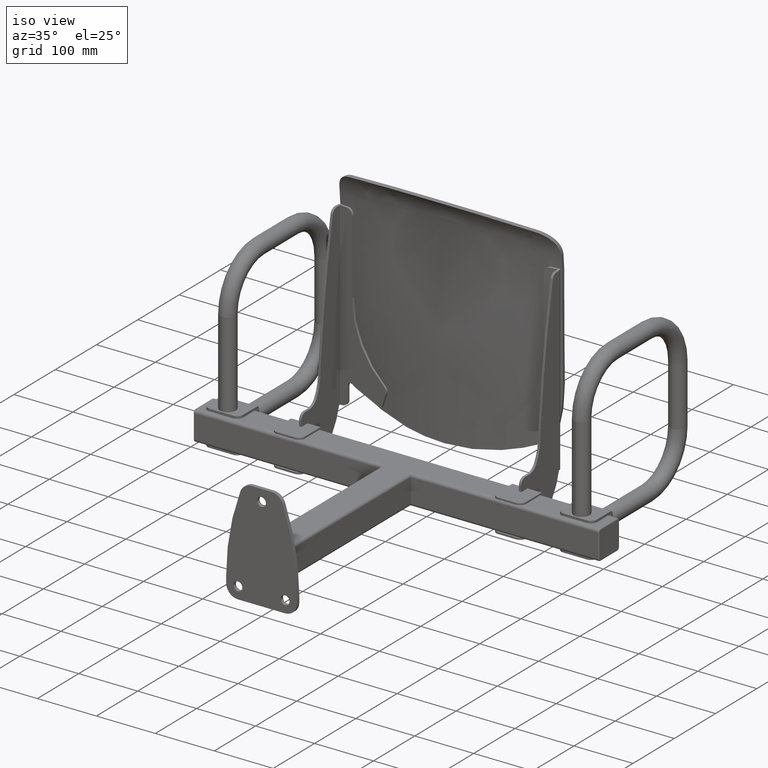
[diagram: clean part render]
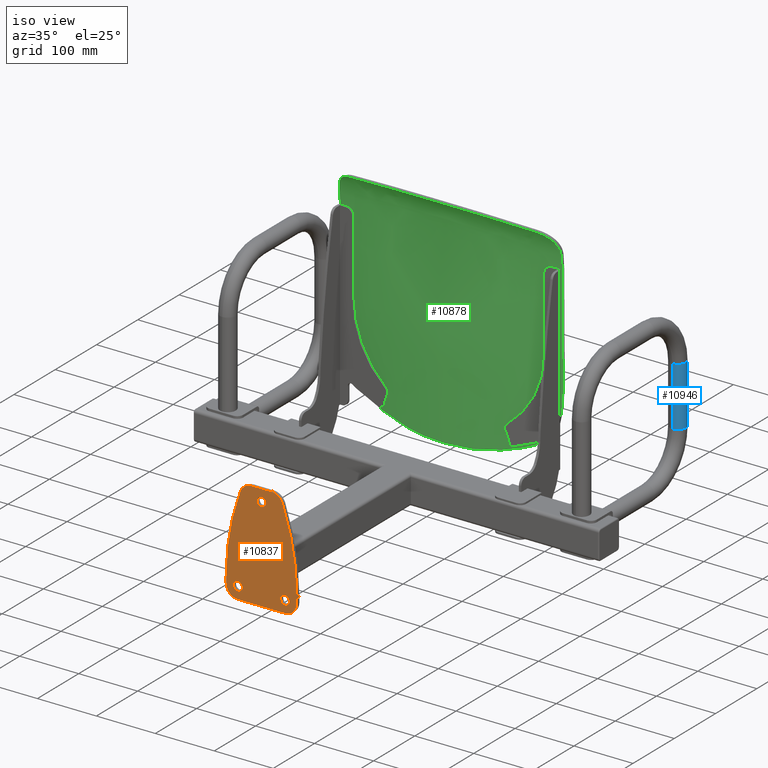
[diagram: same view with three faces highlighted in distinct colors, each labeled with its STEP entity id]
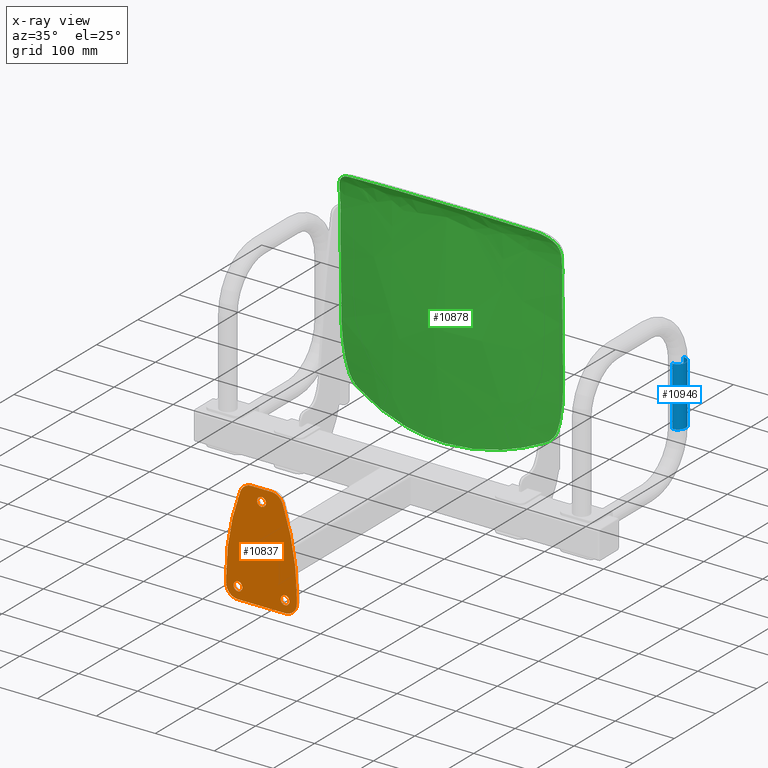
[diagram: x-ray of the same camera — body ghosted, the three highlighted faces saturated]
A machine part, iso view with three faces highlighted in distinct colors.
The next image is the same camera in x-ray (body ghosted, the three faces saturated) — at least one of them is partly hidden behind the body in this view.
Their STEP definitions:

[orange] entity #10837 — the highlighted planar face has unit normal (0, -1, 0).
#960 = LINE ( 'NONE', #13540, #973 ) ;
#973 = VECTOR ( 'NONE', #13545, 1000.000000000000000 ) ;
#1017 = CIRCLE ( 'NONE', #4292, 20.00000000000000400 ) ;
#1020 = CIRCLE ( 'NONE', #4291, 20.00000000000000400 ) ;
#1023 = CIRCLE ( 'NONE', #4293, 400.0000000000000000 ) ;
#1024 = CIRCLE ( 'NONE', #4294, 20.00000000000000400 ) ;
#1025 = CIRCLE ( 'NONE', #4295, 20.00000000000000400 ) ;
#1136 = CIRCLE ( 'NONE', #12463, 7.500000000000000000 ) ;
#1141 = CIRCLE ( 'NONE', #12468, 7.500000000000000000 ) ;
#1142 = CIRCLE ( 'NONE', #12465, 7.500000000000007100 ) ;
#1168 = LINE ( 'NONE', #10729, #1180 ) ;
#1172 = CIRCLE ( 'NONE', #12474, 400.0000000000000000 ) ;
#1173 = CIRCLE ( 'NONE', #12475, 7.500000000000000000 ) ;
#1174 = CIRCLE ( 'NONE', #12476, 7.500000000000000000 ) ;
#1175 = CIRCLE ( 'NONE', #12477, 7.500000000000007100 ) ;
#1177 = LINE ( 'NONE', #10728, #1188 ) ;
#1180 = VECTOR ( 'NONE', #10734, 1000.000000000000000 ) ;
#1188 = VECTOR ( 'NONE', #10742, 1000.000000000000000 ) ;
#1191 = LINE ( 'NONE', #10747, #1194 ) ;
#1194 = VECTOR ( 'NONE', #10748, 1000.000000000000000 ) ;
#1207 = EDGE_LOOP ( 'NONE', ( #12526, #12525, #12524, #12523, #12522, #11550, #11549, #11548, #11547, #11546 ) ) ;
#1649 = CARTESIAN_POINT ( 'NONE',  ( -60.00000000000000000, 0.0000000000000000000, 120.0000000000000100 ) ) ;
#1652 = DIRECTION ( 'NONE',  ( 0.0000000000000000000, -1.000000000000000000, 0.0000000000000000000 ) ) ;
#1657 = PLANE ( 'NONE',  #12519 ) ;
#1664 = DIRECTION ( 'NONE',  ( 0.0000000000000000000, -0.0000000000000000000, -1.000000000000000000 ) ) ;
#4291 = AXIS2_PLACEMENT_3D ( 'NONE', #5890, #5891, #5892 ) ;
#4292 = AXIS2_PLACEMENT_3D ( 'NONE', #5893, #5894, #5895 ) ;
#4293 = AXIS2_PLACEMENT_3D ( 'NONE', #5896, #5897, #5898 ) ;
#4294 = AXIS2_PLACEMENT_3D ( 'NONE', #5901, #5902, #5903 ) ;
#4295 = AXIS2_PLACEMENT_3D ( 'NONE', #5904, #5905, #5906 ) ;
#4539 = EDGE_LOOP ( 'NONE', ( #12530, #12529 ) ) ;
#4542 = EDGE_LOOP ( 'NONE', ( #12528, #12527 ) ) ;
#4543 = EDGE_LOOP ( 'NONE', ( #12532, #12531 ) ) ;
#4637 = CARTESIAN_POINT ( 'NONE',  ( 40.00000000000003600, 0.0000000000000000000, -32.49999999999997900 ) ) ;
#4671 = CARTESIAN_POINT ( 'NONE',  ( -17.07142142714251800, 0.0000000000000000000, 120.0000000000000100 ) ) ;
#4672 = CARTESIAN_POINT ( 'NONE',  ( 9.184850993605149900E-016, 0.0000000000000000000, 92.50000000000000000 ) ) ;
#4680 = CARTESIAN_POINT ( 'NONE',  ( 0.0000000000000000000, 0.0000000000000000000, 107.5000000000000100 ) ) ;
#4778 = CARTESIAN_POINT ( 'NONE',  ( -40.00000000000002800, 0.0000000000000000000, -47.49999999999996400 ) ) ;
#4786 = CARTESIAN_POINT ( 'NONE',  ( 40.00000000000003600, 0.0000000000000000000, -47.49999999999997900 ) ) ;
#4794 = CARTESIAN_POINT ( 'NONE',  ( -40.00000000000002800, 0.0000000000000000000, -32.49999999999996400 ) ) ;
#5526 = VERTEX_POINT ( 'NONE', #4778 ) ;
#5534 = VERTEX_POINT ( 'NONE', #4786 ) ;
#5544 = VERTEX_POINT ( 'NONE', #4794 ) ;
#5634 = VERTEX_POINT ( 'NONE', #13451 ) ;
#5635 = VERTEX_POINT ( 'NONE', #13446 ) ;
#5636 = VERTEX_POINT ( 'NONE', #13452 ) ;
#5642 = VERTEX_POINT ( 'NONE', #13458 ) ;
#5650 = VERTEX_POINT ( 'NONE', #13466 ) ;
#5652 = VERTEX_POINT ( 'NONE', #13468 ) ;
#5662 = VERTEX_POINT ( 'NONE', #13478 ) ;
#5711 = EDGE_CURVE ( 'NONE', #5642, #5635, #960, .T. ) ;
#5744 = EDGE_CURVE ( 'NONE', #16011, #5652, #1020, .T. ) ;
#5745 = EDGE_CURVE ( 'NONE', #5642, #5662, #1017, .T. ) ;
#5746 = EDGE_CURVE ( 'NONE', #5635, #5636, #1023, .T. ) ;
#5747 = EDGE_CURVE ( 'NONE', #10564, #5636, #1024, .T. ) ;
#5748 = EDGE_CURVE ( 'NONE', #16008, #5634, #1025, .T. ) ;
#5890 = CARTESIAN_POINT ( 'NONE',  ( 40.00000000000003600, 0.0000000000000000000, -39.99999999999997900 ) ) ;
#5891 = DIRECTION ( 'NONE',  ( -0.0000000000000000000, -1.000000000000000000, 0.0000000000000000000 ) ) ;
#5892 = DIRECTION ( 'NONE',  ( 0.0000000000000000000, 0.0000000000000000000, -1.000000000000000000 ) ) ;
#5893 = CARTESIAN_POINT ( 'NONE',  ( -40.00000000000002800, 0.0000000000000000000, -39.99999999999996400 ) ) ;
#5894 = DIRECTION ( 'NONE',  ( -0.0000000000000000000, -1.000000000000000000, 0.0000000000000000000 ) ) ;
#5895 = DIRECTION ( 'NONE',  ( 0.0000000000000000000, 0.0000000000000000000, -1.000000000000000000 ) ) ;
#5896 = CARTESIAN_POINT ( 'NONE',  ( 339.9999999999999400, 0.0000000000000000000, -29.99999999999998600 ) ) ;
#5897 = DIRECTION ( 'NONE',  ( 0.0000000000000000000, 1.000000000000000000, -0.0000000000000000000 ) ) ;
#5898 = DIRECTION ( 'NONE',  ( 0.0000000000000000000, 0.0000000000000000000, -1.000000000000000000 ) ) ;
#5901 = CARTESIAN_POINT ( 'NONE',  ( -17.07142142714251800, 0.0000000000000000000, 100.0000000000000100 ) ) ;
#5902 = DIRECTION ( 'NONE',  ( -0.0000000000000000000, -1.000000000000000000, 0.0000000000000000000 ) ) ;
#5903 = DIRECTION ( 'NONE',  ( 0.0000000000000000000, 0.0000000000000000000, -1.000000000000000000 ) ) ;
#5904 = CARTESIAN_POINT ( 'NONE',  ( 17.07142142714251800, 0.0000000000000000000, 100.0000000000000100 ) ) ;
#5905 = DIRECTION ( 'NONE',  ( -0.0000000000000000000, -1.000000000000000000, 0.0000000000000000000 ) ) ;
#5906 = DIRECTION ( 'NONE',  ( 0.0000000000000000000, 0.0000000000000000000, -1.000000000000000000 ) ) ;
#5938 = EDGE_CURVE ( 'NONE', #9843, #5534, #1136, .T. ) ;
#5942 = EDGE_CURVE ( 'NONE', #10573, #10565, #1142, .T. ) ;
#5949 = EDGE_CURVE ( 'NONE', #5544, #5526, #1141, .T. ) ;
#5961 = EDGE_CURVE ( 'NONE', #16008, #5650, #1172, .T. ) ;
#5962 = EDGE_CURVE ( 'NONE', #5526, #5544, #1173, .T. ) ;
#5963 = EDGE_CURVE ( 'NONE', #5534, #9843, #1174, .T. ) ;
#5964 = EDGE_CURVE ( 'NONE', #10565, #10573, #1175, .T. ) ;
#5966 = EDGE_CURVE ( 'NONE', #16011, #5662, #1168, .T. ) ;
#5970 = EDGE_CURVE ( 'NONE', #5650, #5652, #1177, .T. ) ;
#5973 = EDGE_CURVE ( 'NONE', #10564, #5634, #1191, .T. ) ;
#9843 = VERTEX_POINT ( 'NONE', #4637 ) ;
#9913 = FACE_BOUND ( 'NONE', #4542, .T. ) ;
#9916 = FACE_BOUND ( 'NONE', #4543, .T. ) ;
#9917 = FACE_OUTER_BOUND ( 'NONE', #1207, .T. ) ;
#9918 = FACE_BOUND ( 'NONE', #4539, .T. ) ;
#10564 = VERTEX_POINT ( 'NONE', #4671 ) ;
#10565 = VERTEX_POINT ( 'NONE', #4672 ) ;
#10573 = VERTEX_POINT ( 'NONE', #4680 ) ;
#10674 = CARTESIAN_POINT ( 'NONE',  ( 0.0000000000000000000, 0.0000000000000000000, 100.0000000000000000 ) ) ;
#10675 = DIRECTION ( 'NONE',  ( -0.0000000000000000000, -1.000000000000000000, 0.0000000000000000000 ) ) ;
#10676 = DIRECTION ( 'NONE',  ( 0.0000000000000000000, 0.0000000000000000000, -1.000000000000000000 ) ) ;
#10687 = CARTESIAN_POINT ( 'NONE',  ( -40.00000000000002800, 0.0000000000000000000, -39.99999999999996400 ) ) ;
#10688 = DIRECTION ( 'NONE',  ( -0.0000000000000000000, -1.000000000000000000, 0.0000000000000000000 ) ) ;
#10689 = DIRECTION ( 'NONE',  ( 0.0000000000000000000, 0.0000000000000000000, -1.000000000000000000 ) ) ;
#10717 = CARTESIAN_POINT ( 'NONE',  ( -339.9999999999999400, 0.0000000000000000000, -29.99999999999998600 ) ) ;
#10718 = DIRECTION ( 'NONE',  ( 0.0000000000000000000, 1.000000000000000000, -0.0000000000000000000 ) ) ;
#10719 = DIRECTION ( 'NONE',  ( 2.636779683484746800E-015, 0.0000000000000000000, -1.000000000000000000 ) ) ;
#10720 = CARTESIAN_POINT ( 'NONE',  ( -40.00000000000002800, 0.0000000000000000000, -39.99999999999996400 ) ) ;
#10721 = DIRECTION ( 'NONE',  ( -0.0000000000000000000, -1.000000000000000000, 0.0000000000000000000 ) ) ;
#10722 = DIRECTION ( 'NONE',  ( 0.0000000000000000000, 0.0000000000000000000, -1.000000000000000000 ) ) ;
#10725 = CARTESIAN_POINT ( 'NONE',  ( 40.00000000000003600, 0.0000000000000000000, -39.99999999999997900 ) ) ;
#10726 = DIRECTION ( 'NONE',  ( -0.0000000000000000000, -1.000000000000000000, 0.0000000000000000000 ) ) ;
#10727 = DIRECTION ( 'NONE',  ( 0.0000000000000000000, 0.0000000000000000000, -1.000000000000000000 ) ) ;
#10728 = CARTESIAN_POINT ( 'NONE',  ( 60.00000000000000000, 0.0000000000000000000, 120.0000000000000100 ) ) ;
#10729 = CARTESIAN_POINT ( 'NONE',  ( 60.00000000000004300, 0.0000000000000000000, -59.99999999999998600 ) ) ;
#10730 = CARTESIAN_POINT ( 'NONE',  ( 0.0000000000000000000, 0.0000000000000000000, 100.0000000000000000 ) ) ;
#10731 = DIRECTION ( 'NONE',  ( -0.0000000000000000000, -1.000000000000000000, 0.0000000000000000000 ) ) ;
#10732 = DIRECTION ( 'NONE',  ( 0.0000000000000000000, 0.0000000000000000000, -1.000000000000000000 ) ) ;
#10734 = DIRECTION ( 'NONE',  ( -1.000000000000000000, 0.0000000000000000000, 0.0000000000000000000 ) ) ;
#10742 = DIRECTION ( 'NONE',  ( 2.312964634635743000E-016, 0.0000000000000000000, -1.000000000000000000 ) ) ;
#10747 = CARTESIAN_POINT ( 'NONE',  ( 60.00000000000000000, 0.0000000000000000000, 120.0000000000000100 ) ) ;
#10748 = DIRECTION ( 'NONE',  ( 1.000000000000000000, -0.0000000000000000000, -0.0000000000000000000 ) ) ;
#10837 = ADVANCED_FACE ( 'NONE', ( #9916, #9918, #9913, #9917 ), #1657, .T. ) ;
#11546 = ORIENTED_EDGE ( 'NONE', *, *, #5970, .F. ) ;
#11547 = ORIENTED_EDGE ( 'NONE', *, *, #5744, .T. ) ;
#11548 = ORIENTED_EDGE ( 'NONE', *, *, #5966, .F. ) ;
#11549 = ORIENTED_EDGE ( 'NONE', *, *, #5745, .T. ) ;
#11550 = ORIENTED_EDGE ( 'NONE', *, *, #5711, .F. ) ;
#11796 = CARTESIAN_POINT ( 'NONE',  ( 40.00000000000003600, 0.0000000000000000000, -39.99999999999997900 ) ) ;
#11797 = DIRECTION ( 'NONE',  ( -0.0000000000000000000, -1.000000000000000000, 0.0000000000000000000 ) ) ;
#11798 = DIRECTION ( 'NONE',  ( 0.0000000000000000000, 0.0000000000000000000, -1.000000000000000000 ) ) ;
#12463 = AXIS2_PLACEMENT_3D ( 'NONE', #11796, #11797, #11798 ) ;
#12465 = AXIS2_PLACEMENT_3D ( 'NONE', #10674, #10675, #10676 ) ;
#12468 = AXIS2_PLACEMENT_3D ( 'NONE', #10687, #10688, #10689 ) ;
#12474 = AXIS2_PLACEMENT_3D ( 'NONE', #10717, #10718, #10719 ) ;
#12475 = AXIS2_PLACEMENT_3D ( 'NONE', #10720, #10721, #10722 ) ;
#12476 = AXIS2_PLACEMENT_3D ( 'NONE', #10725, #10726, #10727 ) ;
#12477 = AXIS2_PLACEMENT_3D ( 'NONE', #10730, #10731, #10732 ) ;
#12519 = AXIS2_PLACEMENT_3D ( 'NONE', #1649, #1652, #1664 ) ;
#12522 = ORIENTED_EDGE ( 'NONE', *, *, #5746, .F. ) ;
#12523 = ORIENTED_EDGE ( 'NONE', *, *, #5747, .T. ) ;
#12524 = ORIENTED_EDGE ( 'NONE', *, *, #5973, .F. ) ;
#12525 = ORIENTED_EDGE ( 'NONE', *, *, #5748, .T. ) ;
#12526 = ORIENTED_EDGE ( 'NONE', *, *, #5961, .F. ) ;
#12527 = ORIENTED_EDGE ( 'NONE', *, *, #5962, .F. ) ;
#12528 = ORIENTED_EDGE ( 'NONE', *, *, #5949, .F. ) ;
#12529 = ORIENTED_EDGE ( 'NONE', *, *, #5963, .F. ) ;
#12530 = ORIENTED_EDGE ( 'NONE', *, *, #5938, .F. ) ;
#12531 = ORIENTED_EDGE ( 'NONE', *, *, #5964, .F. ) ;
#12532 = ORIENTED_EDGE ( 'NONE', *, *, #5942, .F. ) ;
#13446 = CARTESIAN_POINT ( 'NONE',  ( -60.00000000000003600, 0.0000000000000000000, -29.99999999999992900 ) ) ;
#13451 = CARTESIAN_POINT ( 'NONE',  ( 17.07142142714251800, 0.0000000000000000000, 120.0000000000000100 ) ) ;
#13452 = CARTESIAN_POINT ( 'NONE',  ( -35.86465413383421500, 0.0000000000000000000, 106.8421052631579500 ) ) ;
#13458 = CARTESIAN_POINT ( 'NONE',  ( -60.00000000000003600, 0.0000000000000000000, -39.99999999999990800 ) ) ;
#13466 = CARTESIAN_POINT ( 'NONE',  ( 60.00000000000004300, 0.0000000000000000000, -29.99999999999998600 ) ) ;
#13468 = CARTESIAN_POINT ( 'NONE',  ( 60.00000000000003600, 0.0000000000000000000, -39.99999999999990800 ) ) ;
#13478 = CARTESIAN_POINT ( 'NONE',  ( -40.00000000000002100, 0.0000000000000000000, -59.99999999999998600 ) ) ;
#13540 = CARTESIAN_POINT ( 'NONE',  ( -60.00000000000000000, 0.0000000000000000000, 120.0000000000000100 ) ) ;
#13545 = DIRECTION ( 'NONE',  ( 2.312964634635743000E-016, -0.0000000000000000000, 1.000000000000000000 ) ) ;
#14632 = CARTESIAN_POINT ( 'NONE',  ( 35.86465413383421500, 0.0000000000000000000, 106.8421052631579500 ) ) ;
#14641 = CARTESIAN_POINT ( 'NONE',  ( 40.00000000000003600, 0.0000000000000000000, -59.99999999999998600 ) ) ;
#16008 = VERTEX_POINT ( 'NONE', #14632 ) ;
#16011 = VERTEX_POINT ( 'NONE', #14641 ) ;

[blue] entity #10946 — the highlighted cylindrical surface (edge-blend (fillet) strip) has radius 13.5 mm, axis along (0, -0, 1).
#699 = CIRCLE ( 'NONE', #4238, 13.50000000000001200 ) ;
#701 = CIRCLE ( 'NONE', #4240, 13.50000000000001200 ) ;
#722 = LINE ( 'NONE', #13403, #728 ) ;
#727 = LINE ( 'NONE', #13409, #730 ) ;
#728 = VECTOR ( 'NONE', #13408, 1000.000000000000000 ) ;
#730 = VECTOR ( 'NONE', #13410, 1000.000000000000000 ) ;
#1376 = CARTESIAN_POINT ( 'NONE',  ( 0.0000000000000000000, 204.0000000000000300, 75.00000000000052600 ) ) ;
#1377 = DIRECTION ( 'NONE',  ( 0.0000000000000000000, -1.370553316539457400E-014, 1.000000000000000000 ) ) ;
#1378 = DIRECTION ( 'NONE',  ( 0.0000000000000000000, -1.000000000000000000, -1.336379566678427900E-014 ) ) ;
#1382 = CARTESIAN_POINT ( 'NONE',  ( 0.0000000000000000000, 204.0000000000000000, 174.9999999999994900 ) ) ;
#1383 = DIRECTION ( 'NONE',  ( 0.0000000000000000000, -1.370553316539457400E-014, 1.000000000000000000 ) ) ;
#1384 = DIRECTION ( 'NONE',  ( 0.0000000000000000000, -1.000000000000000000, -1.439177994884460800E-014 ) ) ;
#1451 = ORIENTED_EDGE ( 'NONE', *, *, #4373, .F. ) ;
#1452 = ORIENTED_EDGE ( 'NONE', *, *, #4353, .F. ) ;
#1453 = ORIENTED_EDGE ( 'NONE', *, *, #4372, .T. ) ;
#1454 = ORIENTED_EDGE ( 'NONE', *, *, #4351, .T. ) ;
#2588 = DIRECTION ( 'NONE',  ( 0.0000000000000000000, -1.000000000000000000, 0.0000000000000000000 ) ) ;
#2589 = CARTESIAN_POINT ( 'NONE',  ( 0.0000000000000000000, 204.0000000000000300, 75.00000000000052600 ) ) ;
#2590 = DIRECTION ( 'NONE',  ( 0.0000000000000000000, -2.775557561562919900E-016, 1.000000000000000000 ) ) ;
#3958 = AXIS2_PLACEMENT_3D ( 'NONE', #2589, #2590, #2588 ) ;
#4238 = AXIS2_PLACEMENT_3D ( 'NONE', #1376, #1377, #1378 ) ;
#4240 = AXIS2_PLACEMENT_3D ( 'NONE', #1382, #1383, #1384 ) ;
#4351 = EDGE_CURVE ( 'NONE', #9729, #9501, #699, .T. ) ;
#4353 = EDGE_CURVE ( 'NONE', #9720, #9500, #701, .T. ) ;
#4372 = EDGE_CURVE ( 'NONE', #9501, #9500, #722, .T. ) ;
#4373 = EDGE_CURVE ( 'NONE', #9729, #9720, #727, .T. ) ;
#5539 = EDGE_LOOP ( 'NONE', ( #1454, #1453, #1452, #1451 ) ) ;
#9500 = VERTEX_POINT ( 'NONE', #9691 ) ;
#9501 = VERTEX_POINT ( 'NONE', #9692 ) ;
#9691 = CARTESIAN_POINT ( 'NONE',  ( 1.653273178848925300E-015, 217.5000000000000000, 174.9999999999996900 ) ) ;
#9692 = CARTESIAN_POINT ( 'NONE',  ( 1.653273178848925300E-015, 217.5000000000000300, 75.00000000000071100 ) ) ;
#9697 = CARTESIAN_POINT ( 'NONE',  ( 0.0000000000000000000, 190.4999999999999700, 174.9999999999992900 ) ) ;
#9706 = CARTESIAN_POINT ( 'NONE',  ( 0.0000000000000000000, 190.5000000000000000, 75.00000000000034100 ) ) ;
#9720 = VERTEX_POINT ( 'NONE', #9697 ) ;
#9729 = VERTEX_POINT ( 'NONE', #9706 ) ;
#10946 = ADVANCED_FACE ( 'NONE', ( #11109 ), #11114, .T. ) ;
#11109 = FACE_OUTER_BOUND ( 'NONE', #5539, .T. ) ;
#11114 = CYLINDRICAL_SURFACE ( 'NONE', #3958, 13.50000000000001200 ) ;
#13403 = CARTESIAN_POINT ( 'NONE',  ( 1.653273178848926900E-015, 217.5000000000000300, 75.00000000000052600 ) ) ;
#13408 = DIRECTION ( 'NONE',  ( 0.0000000000000000000, -2.775557561562919900E-016, 1.000000000000000000 ) ) ;
#13409 = CARTESIAN_POINT ( 'NONE',  ( 0.0000000000000000000, 190.5000000000000000, 75.00000000000052600 ) ) ;
#13410 = DIRECTION ( 'NONE',  ( 0.0000000000000000000, -2.775557561562919900E-016, 1.000000000000000000 ) ) ;

[green] entity #10878 — the highlighted face is a freeform B-spline surface patch.
#1897 = CARTESIAN_POINT ( 'NONE',  ( 94.00147219792437200, -6.652947047398322800, 24.07905034312255700 ) ) ;
#1899 = CARTESIAN_POINT ( 'NONE',  ( 94.03219518225523600, -19.44281577140797200, 9.394089762111953200 ) ) ;
#1901 = CARTESIAN_POINT ( 'NONE',  ( 94.05184892738940100, -27.62459972487273100, 0.0000000000000000000 ) ) ;
#1903 = CARTESIAN_POINT ( 'NONE',  ( 43.98675412974044000, -21.07821725085221600, 373.9999999999994300 ) ) ;
#1905 = CARTESIAN_POINT ( 'NONE',  ( 43.66749001821980200, -21.06909804852173100, 359.4733192631499600 ) ) ;
#1907 = CARTESIAN_POINT ( 'NONE',  ( 43.12537105877513000, -21.05361340023219400, 334.8066287048629900 ) ) ;
#1909 = CARTESIAN_POINT ( 'NONE',  ( 46.09469711595767200, -21.13842683250824800, 301.8064929026463100 ) ) ;
#1911 = CARTESIAN_POINT ( 'NONE',  ( 46.98815794703518400, -20.89704230365081700, 274.9985839518411700 ) ) ;
#1913 = CARTESIAN_POINT ( 'NONE',  ( 47.59151520274323800, -20.51884905074953400, 241.6650823493232000 ) ) ;
#1915 = CARTESIAN_POINT ( 'NONE',  ( 47.31135019484687400, -19.84431566015828400, 199.8982916209791100 ) ) ;
#1917 = CARTESIAN_POINT ( 'NONE',  ( 47.22864401855365200, -14.93325044084706700, 150.0974369892218500 ) ) ;
#1919 = CARTESIAN_POINT ( 'NONE',  ( 47.13401870486706700, -12.42010151494119600, 99.82918264297163100 ) ) ;
#1921 = CARTESIAN_POINT ( 'NONE',  ( 47.13352537934614600, -10.59020911032147800, 60.46496127421701800 ) ) ;
#1923 = CARTESIAN_POINT ( 'NONE',  ( 47.00093352157590900, -7.362369461196079700, 24.07905034312243900 ) ) ;
#1925 = CARTESIAN_POINT ( 'NONE',  ( 47.01982399342549000, -20.40587371042583300, 9.394089762111905300 ) ) ;
#1927 = CARTESIAN_POINT ( 'NONE',  ( 47.03190838324900400, -28.74991039025195100, 0.0000000000000000000 ) ) ;
#1929 = CARTESIAN_POINT ( 'NONE',  ( 14.66225220949522000, -22.00000000000002500, 373.9999999999999400 ) ) ;
#1931 = CARTESIAN_POINT ( 'NONE',  ( 14.55583085501892200, -21.99054997315610300, 359.4733192631504200 ) ) ;
#1933 = CARTESIAN_POINT ( 'NONE',  ( 14.37512456242438000, -21.97450357603696600, 334.8066287048631000 ) ) ;
#1935 = CARTESIAN_POINT ( 'NONE',  ( 15.36489976572564100, -22.06239385225708100, 301.8064929026463700 ) ) ;
#1937 = CARTESIAN_POINT ( 'NONE',  ( 15.66271997199650900, -21.81009793963124800, 274.9985839518418500 ) ) ;
#1939 = CARTESIAN_POINT ( 'NONE',  ( 15.86383899043085300, -21.41547858856280600, 241.6650823493227400 ) ) ;
#1941 = CARTESIAN_POINT ( 'NONE',  ( 15.77045055697225500, -20.70839552231908000, 199.8982916209793900 ) ) ;
#1943 = CARTESIAN_POINT ( 'NONE',  ( 15.74288147546312700, -15.59293277903757500, 150.0974369892213100 ) ) ;
#1945 = CARTESIAN_POINT ( 'NONE',  ( 15.71133964592019800, -12.92785167479971300, 99.82918264297161700 ) ) ;
#1947 = CARTESIAN_POINT ( 'NONE',  ( 15.71117517316967000, -11.14362298375914900, 60.46496127421701800 ) ) ;
#1949 = CARTESIAN_POINT ( 'NONE',  ( 15.66697783122310200, -7.519999861654865100, 24.07905034312249600 ) ) ;
#1951 = CARTESIAN_POINT ( 'NONE',  ( 15.67327466315477500, -20.61989171024679400, 9.394089762111930100 ) ) ;
#1953 = CARTESIAN_POINT ( 'NONE',  ( 15.67730279820198000, -29.00000000000036600, 0.0000000000000000000 ) ) ;
#1955 = CARTESIAN_POINT ( 'NONE',  ( -14.66225220949562000, -22.00000000000001400, 373.9999999999999400 ) ) ;
#1957 = CARTESIAN_POINT ( 'NONE',  ( -14.55583085501935700, -21.99054997315608900, 359.4733192631504200 ) ) ;
#1959 = CARTESIAN_POINT ( 'NONE',  ( -14.37512456242488100, -21.97450357603695500, 334.8066287048631000 ) ) ;
#1961 = CARTESIAN_POINT ( 'NONE',  ( -15.36489976572581100, -22.06239385225707400, 301.8064929026463700 ) ) ;
#1963 = CARTESIAN_POINT ( 'NONE',  ( -15.66271997199705100, -21.81009793963124100, 274.9985839518418500 ) ) ;
#1965 = CARTESIAN_POINT ( 'NONE',  ( -15.86383899043136700, -21.41547858856279200, 241.6650823493227400 ) ) ;
#1967 = CARTESIAN_POINT ( 'NONE',  ( -15.77045055697240100, -20.70839552231908000, 199.8982916209793900 ) ) ;
#1969 = CARTESIAN_POINT ( 'NONE',  ( -15.74288147546393200, -15.59293277903756100, 150.0974369892213100 ) ) ;
#1971 = CARTESIAN_POINT ( 'NONE',  ( -15.71133964592087700, -12.92785167479971300, 99.82918264297161700 ) ) ;
#1973 = CARTESIAN_POINT ( 'NONE',  ( -15.71117517316924000, -11.14362298375913500, 60.46496127421701800 ) ) ;
#1975 = CARTESIAN_POINT ( 'NONE',  ( -15.66697783122571200, -7.519999861654861600, 24.07905034312249600 ) ) ;
#1977 = CARTESIAN_POINT ( 'NONE',  ( -15.67327466315645300, -20.61989171024678700, 9.394089762111930100 ) ) ;
#1979 = CARTESIAN_POINT ( 'NONE',  ( -15.67730279820306400, -29.00000000000035200, 0.0000000000000000000 ) ) ;
#1981 = CARTESIAN_POINT ( 'NONE',  ( -43.98675412974078800, -21.07821725085217700, 373.9999999999999400 ) ) ;
#1983 = CARTESIAN_POINT ( 'NONE',  ( -43.66749001822022800, -21.06909804852168500, 359.4733192631498500 ) ) ;
#1985 = CARTESIAN_POINT ( 'NONE',  ( -43.12537105877566300, -21.05361340023213800, 334.8066287048618500 ) ) ;
#1987 = CARTESIAN_POINT ( 'NONE',  ( -46.09469711595758700, -21.13842683250824100, 301.8064929026471600 ) ) ;
#1989 = CARTESIAN_POINT ( 'NONE',  ( -46.98815794703578100, -20.89704230365082100, 274.9985839518413400 ) ) ;
#1991 = CARTESIAN_POINT ( 'NONE',  ( -47.59151520274313900, -20.51884905074954400, 241.6650823493247100 ) ) ;
#1993 = CARTESIAN_POINT ( 'NONE',  ( -47.31135019484753500, -19.84431566015816600, 199.8982916209793900 ) ) ;
#1995 = CARTESIAN_POINT ( 'NONE',  ( -47.22864401855419900, -14.93325044084704300, 150.0974369892211400 ) ) ;
#1997 = CARTESIAN_POINT ( 'NONE',  ( -47.13401870486762800, -12.42010151494114800, 99.82918264297190100 ) ) ;
#1999 = CARTESIAN_POINT ( 'NONE',  ( -47.13352537934596900, -10.59020911032149000, 60.46496127421683300 ) ) ;
#2001 = CARTESIAN_POINT ( 'NONE',  ( -47.00093352157836800, -7.362369461196052200, 24.07905034312249600 ) ) ;
#2003 = CARTESIAN_POINT ( 'NONE',  ( -47.01982399342716000, -20.40587371042585100, 9.394089762111930100 ) ) ;
#2005 = CARTESIAN_POINT ( 'NONE',  ( -47.03190838325015500, -28.74991039025200500, 0.0000000000000000000 ) ) ;
#2007 = CARTESIAN_POINT ( 'NONE',  ( -87.79981516145629400, -16.93549098640921700, 374.0000000000001100 ) ) ;
#2009 = CARTESIAN_POINT ( 'NONE',  ( -87.16018659354762100, -16.92792855668506400, 359.4733192631511000 ) ) ;
#2011 = CARTESIAN_POINT ( 'NONE',  ( -86.07408025978472200, -16.91508734971882400, 334.8066287048646400 ) ) ;
#2013 = CARTESIAN_POINT ( 'NONE',  ( -92.02296616670217600, -16.98542196869173200, 301.8064929026459700 ) ) ;
#2015 = CARTESIAN_POINT ( 'NONE',  ( -93.81680311281608900, -16.79279938955388800, 274.9985839518421400 ) ) ;
#2017 = CARTESIAN_POINT ( 'NONE',  ( -95.03105943927376100, -16.48818535828548100, 241.6650823493212400 ) ) ;
#2019 = CARTESIAN_POINT ( 'NONE',  ( -94.48172396632753600, -15.95964248455619000, 199.8982916209793900 ) ) ;
#2021 = CARTESIAN_POINT ( 'NONE',  ( -94.37788691049816200, -11.96616637480887500, 150.0974369892215100 ) ) ;
#2023 = CARTESIAN_POINT ( 'NONE',  ( -94.21596740861210200, -10.13610858689398600, 99.82918264297134700 ) ) ;
#2025 = CARTESIAN_POINT ( 'NONE',  ( -94.21711623271185900, -8.100523834156119200, 60.46496127421724500 ) ) ;
#2027 = CARTESIAN_POINT ( 'NONE',  ( -94.00147219792728500, -6.652947047398350300, 24.07905034312247100 ) ) ;
#2029 = CARTESIAN_POINT ( 'NONE',  ( -94.03219518225698400, -19.44281577140794000, 9.394089762111921300 ) ) ;
#2031 = CARTESIAN_POINT ( 'NONE',  ( -94.05184892739039500, -27.62459972487266700, 0.0000000000000000000 ) ) ;
#2033 = CARTESIAN_POINT ( 'NONE',  ( -131.2661867296945100, -10.04919731254418200, 373.9999999999996600 ) ) ;
#2035 = CARTESIAN_POINT ( 'NONE',  ( -130.3040063659524300, -10.04446371871654100, 359.4733192631498500 ) ) ;
#2037 = CARTESIAN_POINT ( 'NONE',  ( -128.6701984972711400, -10.03642595039973500, 334.8066287048620800 ) ) ;
#2039 = CARTESIAN_POINT ( 'NONE',  ( -137.6189876742346300, -10.08045089084664200, 301.8064929026466000 ) ) ;
#2041 = CARTESIAN_POINT ( 'NONE',  ( -140.3269722737870200, -9.967930088158297500, 274.9985839518416800 ) ) ;
#2043 = CARTESIAN_POINT ( 'NONE',  ( -142.1671555287224500, -9.784783360178121100, 241.6650823493235100 ) ) ;
#2045 = CARTESIAN_POINT ( 'NONE',  ( -141.3705573537313300, -9.497894769141300500, 199.8982916209792200 ) ) ;
#2047 = CARTESIAN_POINT ( 'NONE',  ( -141.3684417409835100, -7.026153528549373900, 150.0974369892211100 ) ) ;
#2049 = CARTESIAN_POINT ( 'NONE',  ( -141.1938418451068700, -6.332498669985526800, 99.82918264297185800 ) ) ;
#2051 = CARTESIAN_POINT ( 'NONE',  ( -141.2008759528551400, -3.953384559557259900, 60.46496127421686900 ) ) ;
#2053 = CARTESIAN_POINT ( 'NONE',  ( -141.0012136615033900, -5.470281062059445500, 24.07905034312253500 ) ) ;
#2055 = CARTESIAN_POINT ( 'NONE',  ( -141.0296597136034200, -17.83779882003105800, 9.394089762111947900 ) ) ;
#2057 = CARTESIAN_POINT ( 'NONE',  ( -141.0478568865091200, -25.74940139546702200, 0.0000000000000000000 ) ) ;
#2059 = CARTESIAN_POINT ( 'NONE',  ( -159.8982012710472700, -3.647335113865242100, 373.9999999999999400 ) ) ;
#2061 = CARTESIAN_POINT ( 'NONE',  ( -158.7188205400906000, -3.645566458562811400, 359.4733192631504200 ) ) ;
#2063 = CARTESIAN_POINT ( 'NONE',  ( -156.7162006665004700, -3.642563234781712300, 334.8066287048631000 ) ) ;
#2065 = CARTESIAN_POINT ( 'NONE',  ( -167.6850687897885200, -3.659012669861239100, 301.8064929026463700 ) ) ;
#2067 = CARTESIAN_POINT ( 'NONE',  ( -171.0161615940575600, -3.619633017351735900, 274.9985839518418500 ) ) ;
#2069 = CARTESIAN_POINT ( 'NONE',  ( -173.2885674622192200, -3.548239574649667500, 241.6650823493227400 ) ) ;
#2071 = CARTESIAN_POINT ( 'NONE',  ( -172.3489042226739800, -3.484587306551968600, 199.8982916209793900 ) ) ;
#2073 = CARTESIAN_POINT ( 'NONE',  ( -172.5369744330267600, -2.422604438998568800, 150.0974369892213100 ) ) ;
#2075 = CARTESIAN_POINT ( 'NONE',  ( -172.4084565484817500, -2.786696708874123000, 99.82918264297161700 ) ) ;
#2077 = CARTESIAN_POINT ( 'NONE',  ( -172.4236124940049400, -0.08597058208896167500, 60.46496127421701800 ) ) ;
#2079 = CARTESIAN_POINT ( 'NONE',  ( -172.3335652849546000, -4.366048872030049200, 24.07905034312249600 ) ) ;
#2081 = CARTESIAN_POINT ( 'NONE',  ( -172.3463943854464400, -16.33989383102876800, 9.394089762111930100 ) ) ;
#2083 = CARTESIAN_POINT ( 'NONE',  ( -172.3546012662836800, -23.99966068718908500, -0.0000000000000000000 ) ) ;
#2085 = CARTESIAN_POINT ( 'NONE',  ( -174.0995598828850500, 0.0000000000000000000, 374.0000000000000000 ) ) ;
#2087 = CARTESIAN_POINT ( 'NONE',  ( -172.8108673481427200, -6.447634310551964700E-005, 359.4733192631504200 ) ) ;
#2089 = CARTESIAN_POINT ( 'NONE',  ( -170.6226331220935300, -0.0001739588899119231900, 334.8066287048631000 ) ) ;
#2091 = CARTESIAN_POINT ( 'NONE',  ( -182.6081591647214900, 0.0004257053966350196600, 301.8064929026464300 ) ) ;
#2093 = CARTESIAN_POINT ( 'NONE',  ( -186.2553191836767900, -0.001295677843355948700, 274.9985839518418500 ) ) ;
#2095 = CARTESIAN_POINT ( 'NONE',  ( -188.7487724972562300, 0.006931090994490505600, 241.6650823493227400 ) ) ;
#2097 = CARTESIAN_POINT ( 'NONE',  ( -187.7447726677981700, -0.05599187525224731700, 199.8982916209793900 ) ) ;
#2099 = CARTESIAN_POINT ( 'NONE',  ( -188.0684949501051600, 0.2049306768058422600, 150.0974369892213100 ) ) ;
#2101 = CARTESIAN_POINT ( 'NONE',  ( -187.9811588983315300, -0.7623438791216985400, 99.82918264297161700 ) ) ;
#2103 = CARTESIAN_POINT ( 'NONE',  ( -188.0017536320811500, 2.122583092178546700, 60.46496127421701800 ) ) ;
#2105 = CARTESIAN_POINT ( 'NONE',  ( -187.9994654584057200, -3.734882575436279800, 24.07905034312249600 ) ) ;
#2107 = CARTESIAN_POINT ( 'NONE',  ( -187.9997914564060600, -15.48399584763243700, 9.394089762111930100 ) ) ;
#2109 = CARTESIAN_POINT ( 'NONE',  ( -188.0000000000014800, -23.00000000000013500, 0.0000000000000000000 ) ) ;
#4569 = EDGE_LOOP ( 'NONE', ( #12581, #12582, #12583, #12588, #12589, #12587, #12586, #12585, #12584, #12597, #12596, #12591, #12590, #12595, #12594, #12593, #12592, #12605, #12604, #12599, #12598, #12603, #12602, #12601 ) ) ;
#4611 = CARTESIAN_POINT ( 'NONE',  ( -188.0001262463933400, 2.541450085343506500E-005, 199.9999624081456500 ) ) ;
#4614 = CARTESIAN_POINT ( 'NONE',  ( -177.8472204401220400, 0.0001370729932983181300, 315.1059132242442000 ) ) ;
#4615 = CARTESIAN_POINT ( 'NONE',  ( -188.0000111042557800, -6.752819438246039900E-005, 149.9928625333073700 ) ) ;
#4618 = CARTESIAN_POINT ( 'NONE',  ( 188.0000000000000900, -0.03623408467451350000, 240.5739880507189800 ) ) ;
#4619 = CARTESIAN_POINT ( 'NONE',  ( -188.0012035646784600, -1.083772762154606900, 41.68685205327145100 ) ) ;
#4622 = CARTESIAN_POINT ( 'NONE',  ( 187.9999993862942600, 0.0001307344555900622300, 99.99602941533406400 ) ) ;
#4623 = CARTESIAN_POINT ( 'NONE',  ( -186.0003693703180000, 4.691400520831159400E-006, 275.0000391429377900 ) ) ;
#4624 = CARTESIAN_POINT ( 'NONE',  ( 188.0000055521279000, -6.042561700549464800E-005, 149.9928624707747500 ) ) ;
#4625 = CARTESIAN_POINT ( 'NONE',  ( -182.0059755496060900, -0.0001199722734308324300, 299.9718825208765900 ) ) ;
#4627 = CARTESIAN_POINT ( 'NONE',  ( 188.0001262323120000, 2.540896979221925500E-005, 199.9999623146956900 ) ) ;
#4668 = CARTESIAN_POINT ( 'NONE',  ( 158.6470069993035000, -3.560112624779372000, 338.2107555783605300 ) ) ;
#4673 = CARTESIAN_POINT ( 'NONE',  ( -188.0000000000000300, -0.03623408467448574500, 240.5739880507189200 ) ) ;
#4681 = CARTESIAN_POINT ( 'NONE',  ( -158.6470069993034700, -3.560112624779366200, 338.2107555783606500 ) ) ;
#4774 = CARTESIAN_POINT ( 'NONE',  ( -157.5625035321428400, -18.72199756527097100, 7.457756213524751500 ) ) ;
#4776 = CARTESIAN_POINT ( 'NONE',  ( -186.0148617918872600, 0.0001889755164516759900, 274.8693296845094100 ) ) ;
#4780 = CARTESIAN_POINT ( 'NONE',  ( 188.0002311657103500, -1.073385786359298800, 41.69001669799595100 ) ) ;
#4782 = CARTESIAN_POINT ( 'NONE',  ( -187.8563218026024500, -0.0002953768531733703600, 249.8295049315200100 ) ) ;
#4789 = CARTESIAN_POINT ( 'NONE',  ( 177.8472204401215900, 0.0001370729931676992200, 315.1059132242447700 ) ) ;
#4790 = CARTESIAN_POINT ( 'NONE',  ( 186.0003693703419300, 4.691400543098348600E-006, 275.0000391426918900 ) ) ;
#4792 = CARTESIAN_POINT ( 'NONE',  ( 182.0028732582690900, -6.420261101590939700E-005, 299.9859136392646500 ) ) ;
#4793 = CARTESIAN_POINT ( 'NONE',  ( 157.5625035321475300, -18.72199756527040600, 7.457756213525041900 ) ) ;
#4797 = CARTESIAN_POINT ( 'NONE',  ( 186.0148617918831100, 0.0001889755163675522900, 274.8693296845450500 ) ) ;
#4799 = CARTESIAN_POINT ( 'NONE',  ( 2.382764116475699000E-011, -22.00000000000002100, 373.9999999999998900 ) ) ;
#5391 = CARTESIAN_POINT ( 'NONE',  ( 177.5078859497257600, 0.8753604273275450400, 374.0000000000000000 ) ) ;
#5398 = CARTESIAN_POINT ( 'NONE',  ( 176.1929585820747900, 0.8748559993895200800, 359.4733192631504200 ) ) ;
#5399 = CARTESIAN_POINT ( 'NONE',  ( 173.9601769114353300, 0.8739994673240320000, 334.8066287048631000 ) ) ;
#5400 = CARTESIAN_POINT ( 'NONE',  ( 186.1897008547051900, 0.8786909154583509900, 301.8064929026464300 ) ) ;
#5401 = CARTESIAN_POINT ( 'NONE',  ( 189.9127170051849300, 0.8671052836387281900, 274.9985839518418500 ) ) ;
#5402 = CARTESIAN_POINT ( 'NONE',  ( 192.4592217056646200, 0.8601720507488726000, 241.6650823493227400 ) ) ;
#5403 = CARTESIAN_POINT ( 'NONE',  ( 191.4397810946273600, 0.7668710282595632100, 199.8982916209793900 ) ) ;
#5404 = CARTESIAN_POINT ( 'NONE',  ( 191.7960598742048400, 0.8355391045989448700, 150.0974369892213100 ) ) ;
#5405 = CARTESIAN_POINT ( 'NONE',  ( 191.7186074622944100, -0.2764991999811307600, 99.82918264297161700 ) ) ;
#5406 = CARTESIAN_POINT ( 'NONE',  ( 191.7405075052198200, 2.652635974002748300, 60.46496127421701800 ) ) ;
#5407 = CARTESIAN_POINT ( 'NONE',  ( 191.7592815000314500, -3.583402664253777300, 24.07905034312249600 ) ) ;
#5408 = CARTESIAN_POINT ( 'NONE',  ( 191.7566067534347100, -15.27858033161732000, 9.394089762111930100 ) ) ;
#5409 = CARTESIAN_POINT ( 'NONE',  ( 191.7548956960926600, -22.76008143507478800, 0.0000000000000000000 ) ) ;
#5410 = CARTESIAN_POINT ( 'NONE',  ( 176.3717772607787400, 0.5835736182183263200, 374.0000000000000000 ) ) ;
#5411 = CARTESIAN_POINT ( 'NONE',  ( 175.0655948374306100, 0.5832158408119442200, 359.4733192631504200 ) ) ;
#5412 = CARTESIAN_POINT ( 'NONE',  ( 172.8476623149879000, 0.5826083252526885700, 334.8066287048631000 ) ) ;
#5413 = CARTESIAN_POINT ( 'NONE',  ( 184.9958536247105500, 0.5859358454377217000, 301.8064929026464300 ) ) ;
#5414 = CARTESIAN_POINT ( 'NONE',  ( 188.6935843980153900, 0.5776382964780580900, 274.9985839518418500 ) ) ;
#5415 = CARTESIAN_POINT ( 'NONE',  ( 191.2224053028616600, 0.5757583974973408100, 241.6650823493227400 ) ) ;
#5416 = CARTESIAN_POINT ( 'NONE',  ( 190.2081116190174400, 0.4925833937555878000, 199.8982916209793900 ) ) ;
#5417 = CARTESIAN_POINT ( 'NONE',  ( 190.5535382328385500, 0.6253362953345876800, 150.0974369892213100 ) ) ;
#5418 = CARTESIAN_POINT ( 'NONE',  ( 190.4727912743064500, -0.4384474263613228900, 99.82918264297161700 ) ) ;
#5419 = CARTESIAN_POINT ( 'NONE',  ( 190.4942562141737300, 2.475951680061347900, 60.46496127421701800 ) ) ;
#5420 = CARTESIAN_POINT ( 'NONE',  ( 190.5060094861553400, -3.633895967981278100, 24.07905034312249600 ) ) ;
#5421 = CARTESIAN_POINT ( 'NONE',  ( 190.5043349877579100, -15.34705217028902500, 9.394089762111930100 ) ) ;
#5422 = CARTESIAN_POINT ( 'NONE',  ( 190.5032637973952500, -22.84005429004990300, 0.0000000000000000000 ) ) ;
#5423 = CARTESIAN_POINT ( 'NONE',  ( 175.2356685718317000, 0.2917868091091076500, 374.0000000000000000 ) ) ;
#5424 = CARTESIAN_POINT ( 'NONE',  ( 173.9382310927864500, 0.2915756822343684700, 359.4733192631504200 ) ) ;
#5425 = CARTESIAN_POINT ( 'NONE',  ( 171.7351477185404700, 0.2912171831813452600, 334.8066287048631000 ) ) ;
#5426 = CARTESIAN_POINT ( 'NONE',  ( 183.8020063947159000, 0.2931807754170923700, 301.8064929026464300 ) ) ;
#5427 = CARTESIAN_POINT ( 'NONE',  ( 187.4744517908458500, 0.2881713093173882100, 274.9985839518418500 ) ) ;
#5428 = CARTESIAN_POINT ( 'NONE',  ( 189.9855889000587000, 0.2913447442458089200, 241.6650823493227400 ) ) ;
#5429 = CARTESIAN_POINT ( 'NONE',  ( 188.9764421434075000, 0.2182957592516122900, 199.8982916209793900 ) ) ;
#5430 = CARTESIAN_POINT ( 'NONE',  ( 189.3110165914722500, 0.4151334860702304800, 150.0974369892213100 ) ) ;
#5431 = CARTESIAN_POINT ( 'NONE',  ( 189.2269750863184800, -0.6003956527415149600, 99.82918264297161700 ) ) ;
#5432 = CARTESIAN_POINT ( 'NONE',  ( 189.2480049231276700, 2.299267386119948000, 60.46496127421701800 ) ) ;
#5433 = CARTESIAN_POINT ( 'NONE',  ( 189.2527374722792500, -3.684389271708779400, 24.07905034312249600 ) ) ;
#5434 = CARTESIAN_POINT ( 'NONE',  ( 189.2520632220811500, -15.41552400896073200, 9.394089762111930100 ) ) ;
#5435 = CARTESIAN_POINT ( 'NONE',  ( 189.2516318986978100, -22.92002714502502100, 0.0000000000000000000 ) ) ;
#5436 = CARTESIAN_POINT ( 'NONE',  ( 174.0995598828846800, -1.110223024625156500E-013, 374.0000000000000000 ) ) ;
#5437 = CARTESIAN_POINT ( 'NONE',  ( 172.8108673481422700, -6.447634320732522800E-005, 359.4733192631504200 ) ) ;
#5438 = CARTESIAN_POINT ( 'NONE',  ( 170.6226331220930500, -0.0001739588899980785100, 334.8066287048631000 ) ) ;
#5439 = CARTESIAN_POINT ( 'NONE',  ( 182.6081591647212900, 0.0004257053964631438000, 301.8064929026464300 ) ) ;
#5440 = CARTESIAN_POINT ( 'NONE',  ( 186.2553191836763100, -0.001295677843281757200, 274.9985839518418500 ) ) ;
#5441 = CARTESIAN_POINT ( 'NONE',  ( 188.7487724972557400, 0.006931090994277090300, 241.6650823493227400 ) ) ;
#5442 = CARTESIAN_POINT ( 'NONE',  ( 187.7447726677975800, -0.05599187525236318900, 199.8982916209793900 ) ) ;
#5443 = CARTESIAN_POINT ( 'NONE',  ( 188.0684949501059600, 0.2049306768058733200, 150.0974369892213100 ) ) ;
#5444 = CARTESIAN_POINT ( 'NONE',  ( 187.9811588983305100, -0.7623438791217070900, 99.82918264297161700 ) ) ;
#5445 = CARTESIAN_POINT ( 'NONE',  ( 188.0017536320815700, 2.122583092178547600, 60.46496127421701800 ) ) ;
#5446 = CARTESIAN_POINT ( 'NONE',  ( 187.9994654584031700, -3.734882575436279800, 24.07905034312249600 ) ) ;
#5447 = CARTESIAN_POINT ( 'NONE',  ( 187.9997914564043800, -15.48399584763243700, 9.394089762111930100 ) ) ;
#5448 = CARTESIAN_POINT ( 'NONE',  ( 188.0000000000004000, -23.00000000000013500, 0.0000000000000000000 ) ) ;
#5449 = CARTESIAN_POINT ( 'NONE',  ( 159.8982012710469000, -3.647335113865344700, 374.0000000000000000 ) ) ;
#5450 = CARTESIAN_POINT ( 'NONE',  ( 158.7188205400902300, -3.645566458562905100, 359.4733192631504200 ) ) ;
#5451 = CARTESIAN_POINT ( 'NONE',  ( 156.7162006665000700, -3.642563234781790900, 334.8066287048631000 ) ) ;
#5452 = CARTESIAN_POINT ( 'NONE',  ( 167.6850687897883500, -3.659012669861402500, 301.8064929026464300 ) ) ;
#5453 = CARTESIAN_POINT ( 'NONE',  ( 171.0161615940570200, -3.619633017351657300, 274.9985839518418500 ) ) ;
#5454 = CARTESIAN_POINT ( 'NONE',  ( 173.2885674622187100, -3.548239574649871400, 241.6650823493227400 ) ) ;
#5455 = CARTESIAN_POINT ( 'NONE',  ( 172.3489042226735300, -3.484587306552057000, 199.8982916209793900 ) ) ;
#5456 = CARTESIAN_POINT ( 'NONE',  ( 172.5369744330273800, -2.422604438998591900, 150.0974369892213100 ) ) ;
#5457 = CARTESIAN_POINT ( 'NONE',  ( 172.4084565484807300, -2.786696708874108800, 99.82918264297161700 ) ) ;
#5458 = CARTESIAN_POINT ( 'NONE',  ( 172.4236124940054300, -0.08597058208895548600, 60.46496127421701800 ) ) ;
#5459 = CARTESIAN_POINT ( 'NONE',  ( 172.3335652849520700, -4.366048872030040300, 24.07905034312249600 ) ) ;
#5460 = CARTESIAN_POINT ( 'NONE',  ( 172.3463943854448000, -16.33989383102876000, 9.394089762111930100 ) ) ;
#5461 = CARTESIAN_POINT ( 'NONE',  ( 172.3546012662826300, -23.99966068718908500, 0.0000000000000000000 ) ) ;
#5462 = CARTESIAN_POINT ( 'NONE',  ( 131.2661867296943700, -10.04919731254429200, 373.9999999999999400 ) ) ;
#5463 = CARTESIAN_POINT ( 'NONE',  ( 130.3040063659523200, -10.04446371871665500, 359.4733192631504700 ) ) ;
#5464 = CARTESIAN_POINT ( 'NONE',  ( 128.6701984972711200, -10.03642595039985300, 334.8066287048633900 ) ) ;
#5465 = CARTESIAN_POINT ( 'NONE',  ( 137.6189876742342900, -10.08045089084672700, 301.8064929026458000 ) ) ;
#5466 = CARTESIAN_POINT ( 'NONE',  ( 140.3269722737867400, -9.967930088158283300, 274.9985839518410000 ) ) ;
#5467 = CARTESIAN_POINT ( 'NONE',  ( 142.1671555287220800, -9.784783360178227700, 241.6650823493235700 ) ) ;
#5468 = CARTESIAN_POINT ( 'NONE',  ( 141.3705573537303600, -9.497894769141405300, 199.8982916209793900 ) ) ;
#5469 = CARTESIAN_POINT ( 'NONE',  ( 141.3684417409841700, -7.026153528549451200, 150.0974369892216200 ) ) ;
#5470 = CARTESIAN_POINT ( 'NONE',  ( 141.1938418451059400, -6.332498669985498400, 99.82918264297175900 ) ) ;
#5471 = CARTESIAN_POINT ( 'NONE',  ( 141.2008759528551100, -3.953384559557231000, 60.46496127421701800 ) ) ;
#5472 = CARTESIAN_POINT ( 'NONE',  ( 141.0012136615009100, -5.470281062059452600, 24.07905034312242500 ) ) ;
#5473 = CARTESIAN_POINT ( 'NONE',  ( 141.0296597136018000, -17.83779882003101100, 9.394089762111903500 ) ) ;
#5474 = CARTESIAN_POINT ( 'NONE',  ( 141.0478568865080100, -25.74940139546693600, 0.0000000000000000000 ) ) ;
#5475 = CARTESIAN_POINT ( 'NONE',  ( 87.79981516145579700, -16.93549098640924600, 374.0000000000002800 ) ) ;
#5476 = CARTESIAN_POINT ( 'NONE',  ( 87.16018659354705300, -16.92792855668508200, 359.4733192631506400 ) ) ;
#5477 = CARTESIAN_POINT ( 'NONE',  ( 86.07408025978406800, -16.91508734971882100, 334.8066287048633900 ) ) ;
#5478 = CARTESIAN_POINT ( 'NONE',  ( 92.02296616670196300, -16.98542196869184200, 301.8064929026470500 ) ) ;
#5479 = CARTESIAN_POINT ( 'NONE',  ( 93.81680311281550600, -16.79279938955385600, 274.9985839518426500 ) ) ;
#5480 = CARTESIAN_POINT ( 'NONE',  ( 95.03105943927278100, -16.48818535828565100, 241.6650823493222000 ) ) ;
#5481 = CARTESIAN_POINT ( 'NONE',  ( 94.48172396632792000, -15.95964248455616300, 199.8982916209796200 ) ) ;
#5482 = CARTESIAN_POINT ( 'NONE',  ( 94.37788691049731000, -11.96616637480895300, 150.0974369892206800 ) ) ;
#5483 = CARTESIAN_POINT ( 'NONE',  ( 94.21596740861112100, -10.13610858689393600, 99.82918264297163100 ) ) ;
#5484 = CARTESIAN_POINT ( 'NONE',  ( 94.21711623271282600, -8.100523834156163600, 60.46496127421708200 ) ) ;
#5522 = VERTEX_POINT ( 'NONE', #4774 ) ;
#5524 = VERTEX_POINT ( 'NONE', #4776 ) ;
#5528 = VERTEX_POINT ( 'NONE', #4780 ) ;
#5530 = VERTEX_POINT ( 'NONE', #4782 ) ;
#5537 = VERTEX_POINT ( 'NONE', #4789 ) ;
#5540 = VERTEX_POINT ( 'NONE', #4790 ) ;
#5542 = VERTEX_POINT ( 'NONE', #4792 ) ;
#5543 = VERTEX_POINT ( 'NONE', #4793 ) ;
#5547 = VERTEX_POINT ( 'NONE', #4797 ) ;
#5549 = VERTEX_POINT ( 'NONE', #4799 ) ;
#5553 = VERTEX_POINT ( 'NONE', #13420 ) ;
#5764 = EDGE_CURVE ( 'NONE', #9817, #9821, #12376, .T. ) ;
#5977 = EDGE_CURVE ( 'NONE', #5553, #5547, #12407, .T. ) ;
#5982 = EDGE_CURVE ( 'NONE', #5528, #9828, #12405, .T. ) ;
#5984 = EDGE_CURVE ( 'NONE', #9820, #9831, #12388, .T. ) ;
#5986 = EDGE_CURVE ( 'NONE', #5524, #5530, #12387, .T. ) ;
#5988 = EDGE_CURVE ( 'NONE', #9825, #9821, #12425, .T. ) ;
#5989 = EDGE_CURVE ( 'NONE', #5549, #10574, #12404, .T. ) ;
#5992 = EDGE_CURVE ( 'NONE', #5542, #5537, #12346, .T. ) ;
#9557 = CARTESIAN_POINT ( 'NONE',  ( -180.8017965757545100, 0.0001361541687744595600, 305.0260064022712600 ) ) ;
#9558 = CARTESIAN_POINT ( 'NONE',  ( -182.0044438124056400, -5.044486144380701400E-007, 299.9813643962091300 ) ) ;
#9559 = CARTESIAN_POINT ( 'NONE',  ( -182.0059755496060900, -0.0001199722734308324300, 299.9718825208765900 ) ) ;
#9560 = CARTESIAN_POINT ( 'NONE',  ( -186.8850598177102100, 0.0007819467228910065500, 266.5798535911614000 ) ) ;
#9561 = CARTESIAN_POINT ( 'NONE',  ( -186.0148617918872600, 0.0001889755164516759900, 274.8693296845094100 ) ) ;
#9576 = CARTESIAN_POINT ( 'NONE',  ( -187.5078606923417500, 0.002815993890930275900, 258.2347500899748000 ) ) ;
#9577 = CARTESIAN_POINT ( 'NONE',  ( -187.8552697417543100, -3.862708878254785000E-005, 249.8863725735428100 ) ) ;
#9578 = CARTESIAN_POINT ( 'NONE',  ( -187.8563218026024500, -0.0002953768531733703600, 249.8295049315200100 ) ) ;
#9579 = CARTESIAN_POINT ( 'NONE',  ( -188.0012035646784600, -1.083772762154606900, 41.68685205327145100 ) ) ;
#9580 = CARTESIAN_POINT ( 'NONE',  ( -188.0022870628923200, -0.6496528624199394700, 44.33293525947956900 ) ) ;
#9592 = CARTESIAN_POINT ( 'NONE',  ( -13.70315709107879700, -22.00000000000048700, 374.0000000000008000 ) ) ;
#9593 = CARTESIAN_POINT ( 'NONE',  ( 2.382764116475699000E-011, -22.00000000000002100, 373.9999999999998900 ) ) ;
#9594 = CARTESIAN_POINT ( 'NONE',  ( -188.0024722731948500, -0.2939506153449409400, 47.15831624106059600 ) ) ;
#9595 = CARTESIAN_POINT ( 'NONE',  ( -188.0024225126177800, 0.2710497398211061900, 53.07993217866837900 ) ) ;
#9596 = CARTESIAN_POINT ( 'NONE',  ( -188.0021820371105200, 0.4805861891276436700, 56.17533090148489100 ) ) ;
#9597 = CARTESIAN_POINT ( 'NONE',  ( -188.0014612997415200, 0.7510332483496156000, 62.63056684434933900 ) ) ;
#9598 = CARTESIAN_POINT ( 'NONE',  ( -188.0009825776939200, 0.8112463409076793300, 65.99114990217165700 ) ) ;
#9599 = CARTESIAN_POINT ( 'NONE',  ( -188.0003986706767000, 0.8035839978772276700, 71.23478564972887700 ) ) ;
#9600 = CARTESIAN_POINT ( 'NONE',  ( -188.0002281826668600, 0.7849107386901372800, 73.01650368887985100 ) ) ;
#9601 = CARTESIAN_POINT ( 'NONE',  ( -188.0000656917602800, 0.7366653401510950800, 75.74071747489547600 ) ) ;
#9602 = CARTESIAN_POINT ( 'NONE',  ( -188.0000272054003300, 0.7172269422441393000, 76.65739834832338300 ) ) ;
#9603 = CARTESIAN_POINT ( 'NONE',  ( -188.0000057204466100, 0.6892700364291132200, 77.81413039222709900 ) ) ;
#9604 = CARTESIAN_POINT ( 'NONE',  ( -188.0000012761539900, 0.6806090625132726900, 78.16196618944738400 ) ) ;
#9605 = CARTESIAN_POINT ( 'NONE',  ( -188.0000000448795300, 0.6715539034214228500, 78.51102995050034400 ) ) ;
#9606 = CARTESIAN_POINT ( 'NONE',  ( -187.9999999931316900, 0.6677273716807794500, 78.65664399999160100 ) ) ;
#9607 = CARTESIAN_POINT ( 'NONE',  ( -187.9999999984771100, 0.6675670310196454300, 78.66270594968850100 ) ) ;
#9608 = CARTESIAN_POINT ( 'NONE',  ( -187.9999999799213400, 0.6669472572298902300, 78.68621841428729600 ) ) ;
#9609 = CARTESIAN_POINT ( 'NONE',  ( -187.9999999341682700, 0.6660162665476973000, 78.72150048459315000 ) ) ;
#9610 = CARTESIAN_POINT ( 'NONE',  ( -187.9999993048911600, 0.6600947469894459200, 78.94520769805137700 ) ) ;
#9611 = CARTESIAN_POINT ( 'NONE',  ( -187.9999967887187300, 0.6543415771614474700, 79.15858527255709000 ) ) ;
#9612 = CARTESIAN_POINT ( 'NONE',  ( -187.9999341437994900, 0.5655096646645398900, 82.40236736897964000 ) ) ;
#9613 = CARTESIAN_POINT ( 'NONE',  ( -187.9994800347202200, 0.4509624061081551300, 85.74714622946841300 ) ) ;
#9614 = CARTESIAN_POINT ( 'NONE',  ( -187.9986517321492300, 0.2033617786276169200, 93.03012430046702300 ) ) ;
#9615 = CARTESIAN_POINT ( 'NONE',  ( -187.9982983954857600, 0.06993764059986619400, 96.96826173512263800 ) ) ;
#9616 = CARTESIAN_POINT ( 'NONE',  ( -187.9988404034299700, -0.05842154600952731400, 103.3383474381389800 ) ) ;
#9617 = CARTESIAN_POINT ( 'NONE',  ( -187.9991746908248700, -0.08968672453634464500, 105.5387575123954100 ) ) ;
#9618 = CARTESIAN_POINT ( 'NONE',  ( -187.9996250835143300, -0.1191079303156419700, 108.9548556455507400 ) ) ;
#9619 = CARTESIAN_POINT ( 'NONE',  ( -187.9997653972410500, -0.1260118634008326200, 110.1127998685110900 ) ) ;
#9620 = CARTESIAN_POINT ( 'NONE',  ( -187.9999129367367100, -0.1320979699823719400, 111.8785464623068900 ) ) ;
#9621 = CARTESIAN_POINT ( 'NONE',  ( -187.9999708295859800, -0.1340748382612677000, 112.7686270274417100 ) ) ;
#9622 = CARTESIAN_POINT ( 'NONE',  ( -187.9999945213204500, -0.1344802531488385700, 113.6695087631856200 ) ) ;
#9623 = CARTESIAN_POINT ( 'NONE',  ( -187.9999997288816500, -0.1344240143816111700, 114.1217488621962800 ) ) ;
#9624 = CARTESIAN_POINT ( 'NONE',  ( -187.9999997920047600, -0.1343568200076483400, 114.2741671134828900 ) ) ;
#9625 = CARTESIAN_POINT ( 'NONE',  ( -188.0000004369439900, -0.1341660641365376200, 114.5680945865391700 ) ) ;
#9626 = CARTESIAN_POINT ( 'NONE',  ( -188.0000014366885400, -0.1340429855618329700, 114.7148085604898000 ) ) ;
#9627 = CARTESIAN_POINT ( 'NONE',  ( -188.0000551760298600, -0.1291019510138494700, 119.5481202832335300 ) ) ;
#9628 = CARTESIAN_POINT ( 'NONE',  ( -188.0006425985037600, -0.09822056830080566600, 123.9787516329435700 ) ) ;
#9629 = CARTESIAN_POINT ( 'NONE',  ( -188.0011152717919700, -0.03784077606399294200, 132.3161530824617700 ) ) ;
#9630 = CARTESIAN_POINT ( 'NONE',  ( -188.0010323784683800, -0.008097778000090382500, 136.2229627741408000 ) ) ;
#9631 = CARTESIAN_POINT ( 'NONE',  ( -188.0004512504168300, 0.02121331922908495000, 143.5062798044310200 ) ) ;
#9632 = CARTESIAN_POINT ( 'NONE',  ( -188.0000000000001700, 0.02106111504174457100, 146.8828438574750000 ) ) ;
#9633 = CARTESIAN_POINT ( 'NONE',  ( -188.0000111042557800, -6.752819438246039900E-005, 149.9928625333073700 ) ) ;
#9636 = CARTESIAN_POINT ( 'NONE',  ( -27.40251786173711300, -21.59829927750289600, 373.2401518862376400 ) ) ;
#9637 = CARTESIAN_POINT ( 'NONE',  ( -44.52189235742344700, -20.58556990604395100, 371.3242526558273700 ) ) ;
#9638 = CARTESIAN_POINT ( 'NONE',  ( -47.94552520619085800, -20.35741036279801000, 370.8926263182673300 ) ) ;
#9639 = CARTESIAN_POINT ( 'NONE',  ( -54.79230194183628600, -19.84938349206075300, 369.9314897528215100 ) ) ;
#9640 = CARTESIAN_POINT ( 'NONE',  ( -58.21688396920650600, -19.56938746362891000, 369.4017358264065900 ) ) ;
#9641 = CARTESIAN_POINT ( 'NONE',  ( -68.48099206413499500, -18.65178511681628100, 367.6652941120098000 ) ) ;
#9642 = CARTESIAN_POINT ( 'NONE',  ( -75.24413141044867400, -17.94262275974374900, 366.3230389061914100 ) ) ;
#9643 = CARTESIAN_POINT ( 'NONE',  ( -88.61714266929965300, -16.33821413107779100, 363.2822731389149500 ) ) ;
#9644 = CARTESIAN_POINT ( 'NONE',  ( -95.22698482956971600, -15.44280821914198200, 361.5837553788750800 ) ) ;
#9645 = CARTESIAN_POINT ( 'NONE',  ( -108.2982282557873200, -13.47659193804672400, 357.8392658229013800 ) ) ;
#9646 = CARTESIAN_POINT ( 'NONE',  ( -114.7595952493859400, -12.40555965449097200, 355.7933048063818500 ) ) ;
#9647 = CARTESIAN_POINT ( 'NONE',  ( -127.5385371952948900, -10.10605476084715300, 351.3585547668217300 ) ) ;
#9648 = CARTESIAN_POINT ( 'NONE',  ( -133.8560606569915000, -8.877202496894286200, 348.9698051385364600 ) ) ;
#9649 = CARTESIAN_POINT ( 'NONE',  ( -146.3530371576146600, -6.296030642479378200, 343.8492205666926800 ) ) ;
#9650 = CARTESIAN_POINT ( 'NONE',  ( -152.5324352537462900, -4.943244926504678300, 341.1174582662262700 ) ) ;
#9651 = CARTESIAN_POINT ( 'NONE',  ( -158.6470069993034700, -3.560112624779366200, 338.2107555783606500 ) ) ;
#9652 = CARTESIAN_POINT ( 'NONE',  ( 180.7989972531997300, 0.0001361969674148956900, 305.0353241584657000 ) ) ;
#9653 = CARTESIAN_POINT ( 'NONE',  ( 182.0028732582690900, -6.420261101590939700E-005, 299.9859136392646500 ) ) ;
#9664 = CARTESIAN_POINT ( 'NONE',  ( 179.2862481404856400, 0.0001593253498964055900, 310.0706236428882200 ) ) ;
#9665 = CARTESIAN_POINT ( 'NONE',  ( 177.8472204401215900, 0.0001370729931676992200, 315.1059132242447700 ) ) ;
#9817 = VERTEX_POINT ( 'NONE', #4611 ) ;
#9820 = VERTEX_POINT ( 'NONE', #4614 ) ;
#9821 = VERTEX_POINT ( 'NONE', #4615 ) ;
#9824 = VERTEX_POINT ( 'NONE', #4618 ) ;
#9825 = VERTEX_POINT ( 'NONE', #4619 ) ;
#9828 = VERTEX_POINT ( 'NONE', #4622 ) ;
#9829 = VERTEX_POINT ( 'NONE', #4623 ) ;
#9830 = VERTEX_POINT ( 'NONE', #4624 ) ;
#9831 = VERTEX_POINT ( 'NONE', #4625 ) ;
#9833 = VERTEX_POINT ( 'NONE', #4627 ) ;
#10002 = FACE_OUTER_BOUND ( 'NONE', #4569, .T. ) ;
#10039 = CARTESIAN_POINT ( 'NONE',  ( 187.8563218329319100, -0.0002953781440819693900, 249.8295040933976200 ) ) ;
#10040 = CARTESIAN_POINT ( 'NONE',  ( 187.8552697650006000, -3.862727991012557000E-005, 249.8863720149140300 ) ) ;
#10045 = CARTESIAN_POINT ( 'NONE',  ( 187.5078607131780500, 0.002815993958917375300, 258.2347498107805600 ) ) ;
#10046 = CARTESIAN_POINT ( 'NONE',  ( 186.8850598177081100, 0.0007819467228874258600, 266.5798535911824800 ) ) ;
#10047 = CARTESIAN_POINT ( 'NONE',  ( 186.0148617918831100, 0.0001889755163675522900, 274.8693296845450500 ) ) ;
#10076 = CARTESIAN_POINT ( 'NONE',  ( 188.0001569802913100, -0.6434040897013900700, 44.24673741514323000 ) ) ;
#10077 = CARTESIAN_POINT ( 'NONE',  ( 188.0002311657103500, -1.073385786359298800, 41.69001669799595100 ) ) ;
#10107 = CARTESIAN_POINT ( 'NONE',  ( -177.8472204401220400, 0.0001370729932983181300, 315.1059132242442000 ) ) ;
#10109 = CARTESIAN_POINT ( 'NONE',  ( 188.0002004513780800, -0.3280206429164801400, 46.75883080214412500 ) ) ;
#10110 = CARTESIAN_POINT ( 'NONE',  ( 188.0001794455300500, 0.1676882322751859500, 51.62424390945920300 ) ) ;
#10111 = CARTESIAN_POINT ( 'NONE',  ( 188.0001069686971100, 0.3491469932176195500, 53.97564642126901200 ) ) ;
#10112 = CARTESIAN_POINT ( 'NONE',  ( 188.0000296338548700, 0.5507351761103422800, 57.38511377482668500 ) ) ;
#10113 = CARTESIAN_POINT ( 'NONE',  ( 188.0000090525488200, 0.6060471712628980900, 58.50207381544449700 ) ) ;
#10114 = CARTESIAN_POINT ( 'NONE',  ( 188.0000015089922600, 0.6571284715180252300, 59.73716200832395600 ) ) ;
#10115 = CARTESIAN_POINT ( 'NONE',  ( 188.0000005742410600, 0.6654094151712828300, 59.94256220174617800 ) ) ;
#10116 = CARTESIAN_POINT ( 'NONE',  ( 188.0000000885565000, 0.6746729614215131200, 60.18141408637961100 ) ) ;
#10117 = CARTESIAN_POINT ( 'NONE',  ( 188.0000000080800400, 0.6788826932576069700, 60.29212837821918900 ) ) ;
#10118 = CARTESIAN_POINT ( 'NONE',  ( 188.0000000007355500, 0.6804872924560815300, 60.33468177422664500 ) ) ;
#10119 = CARTESIAN_POINT ( 'NONE',  ( 187.9999999996937000, 0.6811279715966572800, 60.35170081108821400 ) ) ;
#10120 = CARTESIAN_POINT ( 'NONE',  ( 187.9999999997660900, 0.6817099514476519000, 60.36718467386477000 ) ) ;
#10121 = CARTESIAN_POINT ( 'NONE',  ( 187.9999999919317000, 0.6833313594838292800, 60.41047405453483800 ) ) ;
#10122 = CARTESIAN_POINT ( 'NONE',  ( 187.9999997807185800, 0.7015839003482257100, 60.90059325913540500 ) ) ;
#10123 = CARTESIAN_POINT ( 'NONE',  ( 187.9999975519342900, 0.7177571877407731300, 61.38232230753843100 ) ) ;
#10124 = CARTESIAN_POINT ( 'NONE',  ( 187.9999876806417900, 0.7585319672900252600, 62.72033810499476700 ) ) ;
#10125 = CARTESIAN_POINT ( 'NONE',  ( 187.9999764144863300, 0.7792098510294751500, 63.58280496427138900 ) ) ;
#10126 = CARTESIAN_POINT ( 'NONE',  ( 187.9999148978574500, 0.8575182649925826600, 67.74901543537342300 ) ) ;
#10127 = CARTESIAN_POINT ( 'NONE',  ( 187.9998676185231800, 0.8437818613488425900, 70.61522174094351100 ) ) ;
#10128 = CARTESIAN_POINT ( 'NONE',  ( 187.9998926704428800, 0.7844858118717292800, 75.43992987978484200 ) ) ;
#10129 = CARTESIAN_POINT ( 'NONE',  ( 187.9999540579028400, 0.7373962301631369300, 77.39810080762923400 ) ) ;
#10130 = CARTESIAN_POINT ( 'NONE',  ( 187.9999921826620800, 0.6876947098131085400, 79.28463757449624400 ) ) ;
#10131 = CARTESIAN_POINT ( 'NONE',  ( 187.9999976275359800, 0.6780971696863415900, 79.63386141535896500 ) ) ;
#10132 = CARTESIAN_POINT ( 'NONE',  ( 187.9999996074850200, 0.6678994785983801700, 79.99518910658999000 ) ) ;
#10133 = CARTESIAN_POINT ( 'NONE',  ( 187.9999998512199700, 0.6662122455319980900, 80.05475309189364500 ) ) ;
#10134 = CARTESIAN_POINT ( 'NONE',  ( 187.9999999771141000, 0.6642662930659696300, 80.12309430987915000 ) ) ;
#10135 = CARTESIAN_POINT ( 'NONE',  ( 187.9999999979133600, 0.6633681266496680400, 80.15455719311641800 ) ) ;
#10136 = CARTESIAN_POINT ( 'NONE',  ( 187.9999999998101400, 0.6630235365073234900, 80.16661552024452000 ) ) ;
#10137 = CARTESIAN_POINT ( 'NONE',  ( 188.0000000000790100, 0.6628857692731817700, 80.17143542858109100 ) ) ;
#10138 = CARTESIAN_POINT ( 'NONE',  ( 187.9999999999875200, 0.6627163998067660000, 80.17735979494121100 ) ) ;
#10139 = CARTESIAN_POINT ( 'NONE',  ( 187.9999999995670200, 0.6622531807150058300, 80.19355300695387700 ) ) ;
#10140 = CARTESIAN_POINT ( 'NONE',  ( 187.9999999882372200, 0.6569993115035458500, 80.37704541772573900 ) ) ;
#10141 = CARTESIAN_POINT ( 'NONE',  ( 187.9999996369982100, 0.6416582846296657900, 80.90443325985899000 ) ) ;
#10142 = CARTESIAN_POINT ( 'NONE',  ( 187.9999985434774300, 0.6261308613980423000, 81.41691360099834200 ) ) ;
#10143 = CARTESIAN_POINT ( 'NONE',  ( 187.9999937577280800, 0.5734613536083368300, 83.11601396944932700 ) ) ;
#10144 = CARTESIAN_POINT ( 'NONE',  ( 187.9999865211891900, 0.5284482738581629500, 84.44596691098362800 ) ) ;
#10145 = CARTESIAN_POINT ( 'NONE',  ( 187.9999687590374400, 0.3914381243312006200, 88.34926918403839100 ) ) ;
#10146 = CARTESIAN_POINT ( 'NONE',  ( 187.9999646408651000, 0.2978820984814325400, 90.83615080980136700 ) ) ;
#10147 = CARTESIAN_POINT ( 'NONE',  ( 187.9999806147883100, 0.1309034290046937600, 95.58451167021878800 ) ) ;
#10148 = CARTESIAN_POINT ( 'NONE',  ( 187.9999999999999700, 0.05738231381104464500, 97.84596959755832300 ) ) ;
#10149 = CARTESIAN_POINT ( 'NONE',  ( 187.9999993862942600, 0.0001307344555900622300, 99.99602941533406400 ) ) ;
#10151 = CARTESIAN_POINT ( 'NONE',  ( -179.2862481404860400, 0.0001593253500302013400, 310.0706236428878200 ) ) ;
#10561 = VERTEX_POINT ( 'NONE', #4668 ) ;
#10566 = VERTEX_POINT ( 'NONE', #4673 ) ;
#10574 = VERTEX_POINT ( 'NONE', #4681 ) ;
#10669 = EDGE_CURVE ( 'NONE', #10574, #9820, #12343, .T. ) ;
#10878 = ADVANCED_FACE ( 'NONE', ( #10002 ), #13356, .T. ) ;
#11811 = CARTESIAN_POINT ( 'NONE',  ( -188.0001262463933400, 2.541450085343506500E-005, 199.9999624081456500 ) ) ;
#11814 = CARTESIAN_POINT ( 'NONE',  ( -187.8525334123356200, 0.03086408126679122300, 183.3205721773864200 ) ) ;
#11826 = CARTESIAN_POINT ( 'NONE',  ( -187.9606046966044300, 0.1179701345371578800, 166.6950656131827200 ) ) ;
#11827 = CARTESIAN_POINT ( 'NONE',  ( -188.0000112297362000, -3.361936279219827900E-005, 149.9952416192824100 ) ) ;
#11828 = CARTESIAN_POINT ( 'NONE',  ( -188.0000111042557800, -6.752819438246039900E-005, 149.9928625333073700 ) ) ;
#12336 = B_SPLINE_CURVE_WITH_KNOTS ( 'NONE', 3,
 ( #14975, #14974, #14980, #14981, #14982 ),
 .UNSPECIFIED., .F., .F.,
 ( 4, 1, 4 ),
 ( 0.4098273238912484900, 0.4098461384073759900, 0.5418886412939554200 ),
 .UNSPECIFIED. ) ;
#12340 = B_SPLINE_CURVE_WITH_KNOTS ( 'NONE', 3,
 ( #14875, #14874, #14880, #14881 ),
 .UNSPECIFIED., .F., .F.,
 ( 4, 4 ),
 ( 0.7390416898494063200, 0.7393860156629057400 ),
 .UNSPECIFIED. ) ;
#12343 = B_SPLINE_CURVE_WITH_KNOTS ( 'NONE', 3,
 ( #15040, #15039, #15043, #15044, #15045, #15046, #15047, #15048, #15049, #15050, #15051, #15052, #15053, #15054, #15055, #15056, #15057, #15058 ),
 .UNSPECIFIED., .F., .F.,
 ( 4, 2, 2, 2, 2, 2, 2, 2, 4 ),
 ( 0.0000000000000000000, 0.007756980139294334000, 0.01163547020894155000, 0.01357471524376515800, 0.01551396027858876700, 0.02327094041788309700, 0.02521018545270674300, 0.02714943048753038600, 0.03102792055717767900 ),
 .UNSPECIFIED. ) ;
#12344 = B_SPLINE_CURVE_WITH_KNOTS ( 'NONE', 3,
 ( #14856, #14857, #14876, #14877 ),
 .UNSPECIFIED., .F., .F.,
 ( 4, 4 ),
 ( 0.0001705772843669340700, 0.009427266619147806100 ),
 .UNSPECIFIED. ) ;
#12345 = B_SPLINE_CURVE_WITH_KNOTS ( 'NONE', 3,
 ( #14913, #14912, #14932, #14933 ),
 .UNSPECIFIED., .F., .F.,
 ( 4, 4 ),
 ( 0.03142580853323429000, 0.05667964773468131500 ),
 .UNSPECIFIED. ) ;
#12346 = B_SPLINE_CURVE_WITH_KNOTS ( 'NONE', 3,
 ( #9653, #9652, #9664, #9665 ),
 .UNSPECIFIED., .F., .F.,
 ( 4, 4 ),
 ( 0.8051992016779040400, 0.8449645817332793700 ),
 .UNSPECIFIED. ) ;
#12349 = B_SPLINE_CURVE_WITH_KNOTS ( 'NONE', 3,
 ( #14984, #14983, #15007, #15008 ),
 .UNSPECIFIED., .F., .F.,
 ( 4, 4 ),
 ( 0.0000000000000000000, 0.04057401022467249000 ),
 .UNSPECIFIED. ) ;
#12350 = B_SPLINE_CURVE_WITH_KNOTS ( 'NONE', 3,
 ( #14971, #14970, #14976, #14977 ),
 .UNSPECIFIED., .F., .F.,
 ( 4, 4 ),
 ( 0.0000000000000000000, 0.04057401022478195800 ),
 .UNSPECIFIED. ) ;
#12351 = B_SPLINE_CURVE_WITH_KNOTS ( 'NONE', 3,
 ( #14879, #14878, #14884, #14885 ),
 .UNSPECIFIED., .F., .F.,
 ( 4, 4 ),
 ( 0.0000000000000000000, 0.009223176487255060500 ),
 .UNSPECIFIED. ) ;
#12363 = B_SPLINE_CURVE_WITH_KNOTS ( 'NONE', 3,
 ( #14887, #14886, #14908, #14909, #14910, #14911 ),
 .UNSPECIFIED., .F., .F.,
 ( 4, 2, 4 ),
 ( 0.1065604945434725600, 0.1317286419521295800, 0.1568967893607865800 ),
 .UNSPECIFIED. ) ;
#12367 = B_SPLINE_CURVE_WITH_KNOTS ( 'NONE', 3,
 ( #14963, #14962, #14972, #14973 ),
 .UNSPECIFIED., .F., .F.,
 ( 4, 4 ),
 ( 0.2606139843371838600, 0.2609583101506876600 ),
 .UNSPECIFIED. ) ;
#12376 = B_SPLINE_CURVE_WITH_KNOTS ( 'NONE', 3,
 ( #11811, #11814, #11826, #11827, #11828 ),
 .UNSPECIFIED., .F., .F.,
 ( 4, 1, 4 ),
 ( 0.4581113582125830300, 0.5901538615926242800, 0.5901726761091143900 ),
 .UNSPECIFIED. ) ;
#12383 = B_SPLINE_CURVE_WITH_KNOTS ( 'NONE', 3,
 ( #14883, #14882, #14888, #14889, #14890, #14891, #14892, #14893, #14894, #14895, #14896, #14897, #14898, #14899, #14900, #14901, #14902, #14903, #14904, #14905 ),
 .UNSPECIFIED., .F., .F.,
 ( 4, 2, 2, 2, 2, 2, 2, 2, 2, 4 ),
 ( 0.01747894250387419700, 0.03804815724627905200, 0.05861737198868390000, 0.07918658673108874800, 0.09975580147349361000, 0.1203250162158984400, 0.1254673199014996200, 0.1306096235871008500, 0.1408942309583032200, 0.1820326604431127000 ),
 .UNSPECIFIED. ) ;
#12386 = B_SPLINE_CURVE_WITH_KNOTS ( 'NONE', 3,
 ( #14979, #14978, #14985, #14986, #14987, #14988, #14989, #14990, #14991, #14992, #14993, #14994, #14995, #14996, #14997, #14998, #14999, #15000, #15001, #15002, #15003, #15004 ),
 .UNSPECIFIED., .F., .F.,
 ( 4, 2, 2, 2, 2, 2, 2, 2, 2, 2, 4 ),
 ( 0.03079469900314655100, 0.07027660330751274400, 0.1097585076118789400, 0.1492404119162451000, 0.1689813640684281700, 0.1887223162206112500, 0.2282042205249774400, 0.2676861248293435600, 0.2874270769815267000, 0.3071680291337097700, 0.3466499334380759300 ),
 .UNSPECIFIED. ) ;
#12387 = B_SPLINE_CURVE_WITH_KNOTS ( 'NONE', 3,
 ( #9561, #9560, #9576, #9577, #9578 ),
 .UNSPECIFIED., .F., .F.,
 ( 4, 1, 4 ),
 ( 0.2609583101506876600, 0.3264298036242167000, 0.3268784142531473400 ),
 .UNSPECIFIED. ) ;
#12388 = B_SPLINE_CURVE_WITH_KNOTS ( 'NONE', 3,
 ( #10107, #10151, #9557, #9558, #9559 ),
 .UNSPECIFIED., .F., .F.,
 ( 4, 1, 4 ),
 ( 0.1550354182667220100, 0.1948007983974826300, 0.1948743837161259500 ),
 .UNSPECIFIED. ) ;
#12404 = B_SPLINE_CURVE_WITH_KNOTS ( 'NONE', 3,
 ( #9593, #9592, #9636, #9637, #9638, #9639, #9640, #9641, #9642, #9643, #9644, #9645, #9646, #9647, #9648, #9649, #9650, #9651 ),
 .UNSPECIFIED., .F., .F.,
 ( 4, 2, 2, 2, 2, 2, 2, 2, 4 ),
 ( 0.1820326604431127000, 0.2231594277522714300, 0.2334411195795611200, 0.2437228114068508100, 0.2642861950614301400, 0.2848495787160095800, 0.3054129623705889000, 0.3259763460251683400, 0.3465397296797477200 ),
 .UNSPECIFIED. ) ;
#12405 = B_SPLINE_CURVE_WITH_KNOTS ( 'NONE', 3,
 ( #10077, #10076, #10109, #10110, #10111, #10112, #10113, #10114, #10115, #10116, #10117, #10118, #10119, #10120, #10121, #10122, #10123, #10124, #10125, #10126, #10127, #10128, #10129, #10130, #10131, #10132, #10133, #10134, #10135, #10136, #10137, #10138, #10139, #10140, #10141, #10142, #10143, #10144, #10145, #10146, #10147, #10148, #10149 ),
 .UNSPECIFIED., .F., .F.,
 ( 4, 2, 2, 2, 1, 1, 1, 2, 2, 1, 2, 2, 2, 2, 2, 1, 1, 1, 2, 2, 1, 1, 2, 2, 2, 4 ),
 ( 0.3633871575399147400, 0.4429637628474331100, 0.5225403681549514200, 0.5623286708087106300, 0.5673022086404305700, 0.5697889775562904300, 0.5710323620142204700, 0.5713432081287029800, 0.5716540542431856100, 0.5722757464721508500, 0.5822228221355955100, 0.6021169734624844900, 0.6816935787700405500, 0.7612701840775966100, 0.7811643354044857100, 0.7836511043203473500, 0.7848944887782780500, 0.7855161810072433000, 0.7856716040644844400, 0.7858270271217255900, 0.7861378732362082100, 0.7911114110679244900, 0.8010584867313563800, 0.8408467893850850600, 0.9204233946925424200, 1.000000000000000000 ),
 .UNSPECIFIED. ) ;
#12407 = B_SPLINE_CURVE_WITH_KNOTS ( 'NONE', 3,
 ( #10039, #10040, #10045, #10046, #10047 ),
 .UNSPECIFIED., .F., .F.,
 ( 4, 1, 4 ),
 ( 0.6731215835413418800, 0.6735701963757831900, 0.7390416898494063200 ),
 .UNSPECIFIED. ) ;
#12409 = B_SPLINE_CURVE_WITH_KNOTS ( 'NONE', 3,
 ( #14801, #14800, #14829, #14830, #14831, #14832, #14833, #14834, #14835, #14836, #14837, #14838, #14839, #14840, #14841, #14842, #14843, #14844, #14845, #14846, #14847, #14848, #14849, #14850, #14851, #14852 ),
 .UNSPECIFIED., .F., .F.,
 ( 4, 2, 2, 2, 2, 2, 2, 2, 2, 2, 2, 2, 4 ),
 ( 0.0000000000000000000, 0.006654779715465479000, 0.009982169573198211900, 0.01330955943093095300, 0.01996433914639642700, 0.02329172900412918400, 0.02661911886186194400, 0.03327389857732741100, 0.03493759350619379800, 0.03660128843506019200, 0.03992867829279303500, 0.04658345800825865200, 0.05323823772372426900 ),
 .UNSPECIFIED. ) ;
#12415 = B_SPLINE_CURVE_WITH_KNOTS ( 'NONE', 3,
 ( #14723, #14740, #14748, #14749 ),
 .UNSPECIFIED., .F., .F.,
 ( 4, 4 ),
 ( 0.03445279691215157700, 0.05969954567152369700 ),
 .UNSPECIFIED. ) ;
#12423 = B_SPLINE_CURVE_WITH_KNOTS ( 'NONE', 3,
 ( #15006, #15005, #15011, #15012, #15013, #15014, #15015, #15016, #15017, #15018, #15019, #15020, #15021, #15022, #15023, #15024, #15025, #15026, #15027, #15028, #15029, #15030, #15031, #15032, #15033, #15034, #15035, #15036, #15037, #15038 ),
 .UNSPECIFIED., .F., .F.,
 ( 4, 2, 2, 2, 2, 2, 2, 2, 2, 2, 2, 2, 2, 2, 4 ),
 ( 0.0000000000000000000, 0.006655776765280109600, 0.009983665147920161400, 0.01164760933924015100, 0.01331155353056014300, 0.01996733029584004200, 0.02163127448716000200, 0.02329521867847996300, 0.02662310706111983100, 0.02995099544375970400, 0.03161493963507963600, 0.03327888382639956200, 0.03993466059167928600, 0.04659043735695900200, 0.05324621412223872600 ),
 .UNSPECIFIED. ) ;
#12425 = B_SPLINE_CURVE_WITH_KNOTS ( 'NONE', 3,
 ( #9579, #9580, #9594, #9595, #9596, #9597, #9598, #9599, #9600, #9601, #9602, #9603, #9604, #9605, #9606, #9607, #9608, #9609, #9610, #9611, #9612, #9613, #9614, #9615, #9616, #9617, #9618, #9619, #9620, #9621, #9622, #9623, #9624, #9625, #9626, #9627, #9628, #9629, #9630, #9631, #9632, #9633 ),
 .UNSPECIFIED., .F., .F.,
 ( 4, 2, 2, 2, 2, 2, 1, 2, 2, 1, 1, 2, 2, 2, 2, 2, 1, 2, 2, 2, 2, 2, 4 ),
 ( 0.3418074902021571200, 0.3829445220645491000, 0.4240815539269411300, 0.4652185857893331700, 0.4857871017205291900, 0.4960713596861270900, 0.4986424241775266300, 0.4999279564232263500, 0.5002493394846512200, 0.5005707225460760400, 0.5012134886689253400, 0.5063556176517195500, 0.5886296813764296800, 0.6709037451011399300, 0.7120407769634949900, 0.7326092928946724700, 0.7428935508602612100, 0.7480356798430554100, 0.7506067443344528500, 0.7531778088258500600, 0.8354518725505669700, 0.9177259362752836500, 1.000000000000000000 ),
 .UNSPECIFIED. ) ;
#12427 = B_SPLINE_CURVE_WITH_KNOTS ( 'NONE', 3,
 ( #14907, #14906, #14914, #14915, #14916, #14917, #14918, #14919, #14920, #14921, #14922, #14923, #14924, #14925, #14926, #14927, #14928, #14929 ),
 .UNSPECIFIED., .F., .F.,
 ( 4, 2, 2, 2, 2, 2, 2, 2, 4 ),
 ( 0.0000000000000000000, 0.007757990828395534700, 0.01163698624259330300, 0.01357648394969211700, 0.01551598165679093100, 0.02327397248518590600, 0.02521347019228468600, 0.02715296789938346400, 0.03103196331358108400 ),
 .UNSPECIFIED. ) ;
#12581 = ORIENTED_EDGE ( 'NONE', *, *, #16069, .T. ) ;
#12582 = ORIENTED_EDGE ( 'NONE', *, *, #16071, .T. ) ;
#12583 = ORIENTED_EDGE ( 'NONE', *, *, #5982, .T. ) ;
#12584 = ORIENTED_EDGE ( 'NONE', *, *, #16057, .T. ) ;
#12585 = ORIENTED_EDGE ( 'NONE', *, *, #5977, .T. ) ;
#12586 = ORIENTED_EDGE ( 'NONE', *, *, #16058, .T. ) ;
#12587 = ORIENTED_EDGE ( 'NONE', *, *, #16070, .T. ) ;
#12588 = ORIENTED_EDGE ( 'NONE', *, *, #16060, .T. ) ;
#12589 = ORIENTED_EDGE ( 'NONE', *, *, #16068, .T. ) ;
#12590 = ORIENTED_EDGE ( 'NONE', *, *, #16059, .T. ) ;
#12591 = ORIENTED_EDGE ( 'NONE', *, *, #16061, .T. ) ;
#12592 = ORIENTED_EDGE ( 'NONE', *, *, #16062, .T. ) ;
#12593 = ORIENTED_EDGE ( 'NONE', *, *, #5984, .T. ) ;
#12594 = ORIENTED_EDGE ( 'NONE', *, *, #10669, .T. ) ;
#12595 = ORIENTED_EDGE ( 'NONE', *, *, #5989, .T. ) ;
#12596 = ORIENTED_EDGE ( 'NONE', *, *, #5992, .T. ) ;
#12597 = ORIENTED_EDGE ( 'NONE', *, *, #16049, .T. ) ;
#12598 = ORIENTED_EDGE ( 'NONE', *, *, #16067, .T. ) ;
#12599 = ORIENTED_EDGE ( 'NONE', *, *, #16056, .T. ) ;
#12601 = ORIENTED_EDGE ( 'NONE', *, *, #16053, .T. ) ;
#12602 = ORIENTED_EDGE ( 'NONE', *, *, #5988, .F. ) ;
#12603 = ORIENTED_EDGE ( 'NONE', *, *, #5764, .T. ) ;
#12604 = ORIENTED_EDGE ( 'NONE', *, *, #5986, .T. ) ;
#12605 = ORIENTED_EDGE ( 'NONE', *, *, #16066, .T. ) ;
#13356 = B_SPLINE_SURFACE_WITH_KNOTS ( 'NONE', 3, 3, ( 
 ( #5391, #5398, #5399, #5400, #5401, #5402, #5403, #5404, #5405, #5406, #5407, #5408, #5409 ),
 ( #5410, #5411, #5412, #5413, #5414, #5415, #5416, #5417, #5418, #5419, #5420, #5421, #5422 ),
 ( #5423, #5424, #5425, #5426, #5427, #5428, #5429, #5430, #5431, #5432, #5433, #5434, #5435 ),
 ( #5436, #5437, #5438, #5439, #5440, #5441, #5442, #5443, #5444, #5445, #5446, #5447, #5448 ),
 ( #5449, #5450, #5451, #5452, #5453, #5454, #5455, #5456, #5457, #5458, #5459, #5460, #5461 ),
 ( #5462, #5463, #5464, #5465, #5466, #5467, #5468, #5469, #5470, #5471, #5472, #5473, #5474 ),
 ( #5475, #5476, #5477, #5478, #5479, #5480, #5481, #5482, #5483, #5484, #1897, #1899, #1901 ),
 ( #1903, #1905, #1907, #1909, #1911, #1913, #1915, #1917, #1919, #1921, #1923, #1925, #1927 ),
 ( #1929, #1931, #1933, #1935, #1937, #1939, #1941, #1943, #1945, #1947, #1949, #1951, #1953 ),
 ( #1955, #1957, #1959, #1961, #1963, #1965, #1967, #1969, #1971, #1973, #1975, #1977, #1979 ),
 ( #1981, #1983, #1985, #1987, #1989, #1991, #1993, #1995, #1997, #1999, #2001, #2003, #2005 ),
 ( #2007, #2009, #2011, #2013, #2015, #2017, #2019, #2021, #2023, #2025, #2027, #2029, #2031 ),
 ( #2033, #2035, #2037, #2039, #2041, #2043, #2045, #2047, #2049, #2051, #2053, #2055, #2057 ),
 ( #2059, #2061, #2063, #2065, #2067, #2069, #2071, #2073, #2075, #2077, #2079, #2081, #2083 ),
 ( #2085, #2087, #2089, #2091, #2093, #2095, #2097, #2099, #2101, #2103, #2105, #2107, #2109 ) ),
 .UNSPECIFIED., .F., .F., .F.,
 ( 4, 3, 1, 1, 1, 2, 1, 1, 1, 4 ),
 ( 4, 1, 1, 1, 1, 1, 1, 1, 1, 1, 4 ),
 ( -0.01000000000000000000, 0.0000000000000000000, 0.1250000000000000300, 0.2500000000000000600, 0.3750000000000001100, 0.5000000000000001100, 0.6250000000000001100, 0.7500000000000000000, 0.8750000000000000000, 1.000000000000000000 ),
 ( 0.0000000000000000000, 0.1147218755964356400, 0.1948007983974813000, 0.2606139848572682200, 0.3264298036242167000, 0.4581111813546794300, 0.5901538615926241700, 0.7220127297153236000, 0.8538715978388121700, 0.9065204622699966100, 1.000000000000000000 ),
 .UNSPECIFIED. ) ;
#13420 = CARTESIAN_POINT ( 'NONE',  ( 187.8563218329319100, -0.0002953781440819693900, 249.8295040933976200 ) ) ;
#14723 = CARTESIAN_POINT ( 'NONE',  ( 186.0003693703419300, 4.691400543098348600E-006, 275.0000391426918900 ) ) ;
#14740 = CARTESIAN_POINT ( 'NONE',  ( 185.0253544612993400, -0.02292648427060573600, 283.3599784292289300 ) ) ;
#14748 = CARTESIAN_POINT ( 'NONE',  ( 183.6956971840429800, -0.07035066771063297500, 291.6841277210692200 ) ) ;
#14749 = CARTESIAN_POINT ( 'NONE',  ( 182.0028732582690900, -6.420261101590939700E-005, 299.9859136392646500 ) ) ;
#14800 = CARTESIAN_POINT ( 'NONE',  ( -188.0000587285632000, -1.447830650546457500, 39.46435351716117200 ) ) ;
#14801 = CARTESIAN_POINT ( 'NONE',  ( -188.0012035646784600, -1.083772762154606900, 41.68685205327145100 ) ) ;
#14829 = CARTESIAN_POINT ( 'NONE',  ( -187.7971251457996400, -1.911303956992594900, 37.29855285475513000 ) ) ;
#14830 = CARTESIAN_POINT ( 'NONE',  ( -187.2175313746379600, -2.758875540557254300, 34.13244390677589000 ) ) ;
#14831 = CARTESIAN_POINT ( 'NONE',  ( -186.9781520750522400, -3.066914173309337200, 33.09092064502518600 ) ) ;
#14832 = CARTESIAN_POINT ( 'NONE',  ( -186.4085725741840300, -3.738856218016961100, 31.03655975209792900 ) ) ;
#14833 = CARTESIAN_POINT ( 'NONE',  ( -186.0766125645388600, -4.104976098928723600, 30.02005557707634900 ) ) ;
#14834 = CARTESIAN_POINT ( 'NONE',  ( -184.9683082466914400, -5.268362767175740500, 27.07474172419683400 ) ) ;
#14835 = CARTESIAN_POINT ( 'NONE',  ( -184.0768802602826200, -6.131571870147404900, 25.22982941988272600 ) ) ;
#14836 = CARTESIAN_POINT ( 'NONE',  ( -182.5158305963574900, -7.505729579570508600, 22.61334249025995300 ) ) ;
#14837 = CARTESIAN_POINT ( 'NONE',  ( -181.9575054633198800, -7.977360974726611400, 21.76613583551501600 ) ) ;
#14838 = CARTESIAN_POINT ( 'NONE',  ( -180.7633604544010400, -8.938350132625110700, 20.12216219812057700 ) ) ;
#14839 = CARTESIAN_POINT ( 'NONE',  ( -180.1345719291215900, -9.422027925980758700, 19.33498469190287800 ) ) ;
#14840 = CARTESIAN_POINT ( 'NONE',  ( -178.1518376286983900, -10.87019945216017400, 17.07074177963097800 ) ) ;
#14841 = CARTESIAN_POINT ( 'NONE',  ( -176.7026688450405300, -11.83190475732852100, 15.68983596728916500 ) ) ;
#14842 = CARTESIAN_POINT ( 'NONE',  ( -174.7113538467321000, -12.98983527638210200, 14.11899133975882800 ) ) ;
#14843 = CARTESIAN_POINT ( 'NONE',  ( -174.3040060162905400, -13.21920671751717800, 13.81267854075060000 ) ) ;
#14844 = CARTESIAN_POINT ( 'NONE',  ( -173.4702205147404800, -13.67248069280844900, 13.21600947525429200 ) ) ;
#14845 = CARTESIAN_POINT ( 'NONE',  ( -173.0428318577883100, -13.89683853629790500, 12.92508384603119400 ) ) ;
#14846 = CARTESIAN_POINT ( 'NONE',  ( -171.7423180278724400, -14.55417714325450400, 12.08432733528390200 ) ) ;
#14847 = CARTESIAN_POINT ( 'NONE',  ( -170.8484770596637900, -14.97288124841511700, 11.56444884997620500 ) ) ;
#14848 = CARTESIAN_POINT ( 'NONE',  ( -168.0824033809954900, -16.16008857636331400, 10.12663633790852700 ) ) ;
#14849 = CARTESIAN_POINT ( 'NONE',  ( -166.1266696214483100, -16.86038420633009600, 9.328880252640905400 ) ) ;
#14850 = CARTESIAN_POINT ( 'NONE',  ( -161.9496565054488400, -18.01407924286388300, 8.090412236154932700 ) ) ;
#14851 = CARTESIAN_POINT ( 'NONE',  ( -159.7913168350770800, -18.44935490444149900, 7.669218560555566300 ) ) ;
#14852 = CARTESIAN_POINT ( 'NONE',  ( -157.5625035321428400, -18.72199756527097100, 7.457756213524751500 ) ) ;
#14856 = CARTESIAN_POINT ( 'NONE',  ( -187.8563218026024500, -0.0002953768531733703600, 249.8295049315200100 ) ) ;
#14857 = CARTESIAN_POINT ( 'NONE',  ( -187.9519628783952500, -0.008852473454792375200, 246.7450686976239100 ) ) ;
#14874 = CARTESIAN_POINT ( 'NONE',  ( 186.0091855026281600, 7.993475408453416300E-006, 274.9128097015121200 ) ) ;
#14875 = CARTESIAN_POINT ( 'NONE',  ( 186.0148617918831100, 0.0001889755163675522900, 274.8693296845450500 ) ) ;
#14876 = CARTESIAN_POINT ( 'NONE',  ( -188.0000000000000300, -0.02031143313387864100, 243.6599006653990500 ) ) ;
#14877 = CARTESIAN_POINT ( 'NONE',  ( -188.0000000000000300, -0.03623408467448574500, 240.5739880507189200 ) ) ;
#14878 = CARTESIAN_POINT ( 'NONE',  ( 187.9999999999999700, -0.02029027281043792000, 243.6640016726323700 ) ) ;
#14879 = CARTESIAN_POINT ( 'NONE',  ( 188.0000000000000900, -0.03623408467451350000, 240.5739880507189800 ) ) ;
#14880 = CARTESIAN_POINT ( 'NONE',  ( 186.0045962450358300, 3.979005126270365800E-006, 274.9564048359376900 ) ) ;
#14881 = CARTESIAN_POINT ( 'NONE',  ( 186.0003693703419300, 4.691400543098348600E-006, 275.0000391426918900 ) ) ;
#14882 = CARTESIAN_POINT ( 'NONE',  ( 152.5324734449240500, -4.943236287559271200, 341.1174401111688900 ) ) ;
#14883 = CARTESIAN_POINT ( 'NONE',  ( 158.6470069993035000, -3.560112624779372000, 338.2107555783605300 ) ) ;
#14884 = CARTESIAN_POINT ( 'NONE',  ( 187.9518355862728100, -0.008841356347464843200, 246.7491550724903100 ) ) ;
#14885 = CARTESIAN_POINT ( 'NONE',  ( 187.8563218329319100, -0.0002953781440819693900, 249.8295040933976200 ) ) ;
#14886 = CARTESIAN_POINT ( 'NONE',  ( 188.0000000000000600, -0.2219147512736332500, 108.3302839504101800 ) ) ;
#14887 = CARTESIAN_POINT ( 'NONE',  ( 187.9999993862942600, 0.0001307344555900622300, 99.99602941533406400 ) ) ;
#14888 = CARTESIAN_POINT ( 'NONE',  ( 146.3538017206377000, -6.295854568327282400, 343.8488588533035700 ) ) ;
#14889 = CARTESIAN_POINT ( 'NONE',  ( 133.8598354048147900, -8.876440998360285700, 348.9683068704360400 ) ) ;
#14890 = CARTESIAN_POINT ( 'NONE',  ( 127.5445954211474100, -10.10487705523404500, 351.3562635471641300 ) ) ;
#14891 = CARTESIAN_POINT ( 'NONE',  ( 114.7719455246103700, -12.40342471888841100, 355.7892073456687300 ) ) ;
#14892 = CARTESIAN_POINT ( 'NONE',  ( 108.3145865702684900, -13.47391658439077300, 357.8341550194513700 ) ) ;
#14893 = CARTESIAN_POINT ( 'NONE',  ( 95.25325192481267300, -15.43907102924948500, 361.5766539939130600 ) ) ;
#14894 = CARTESIAN_POINT ( 'NONE',  ( 88.64931000434128800, -16.33395556188424200, 363.2741942338038300 ) ) ;
#14895 = CARTESIAN_POINT ( 'NONE',  ( 75.29017561257082000, -17.93749567626504400, 366.3133295470900100 ) ) ;
#14896 = CARTESIAN_POINT ( 'NONE',  ( 68.53501227921178400, -18.64631041292451400, 367.6549313147858700 ) ) ;
#14897 = CARTESIAN_POINT ( 'NONE',  ( 59.99299127295411400, -19.41076263990638400, 369.1015598623745300 ) ) ;
#14898 = CARTESIAN_POINT ( 'NONE',  ( 58.27801566163965000, -19.55770601003478900, 369.3796050390656700 ) ) ;
#14899 = CARTESIAN_POINT ( 'NONE',  ( 54.84860110725536900, -19.83845880570849800, 369.9108127927299800 ) ) ;
#14900 = CARTESIAN_POINT ( 'NONE',  ( 53.13395564275896300, -19.97230260924570900, 370.1640403916295000 ) ) ;
#14901 = CARTESIAN_POINT ( 'NONE',  ( 47.99020352424131600, -20.35434807277272300, 370.8868330951595500 ) ) ;
#14902 = CARTESIAN_POINT ( 'NONE',  ( 44.56128111000609200, -20.58306608736723900, 371.3195159002677900 ) ) ;
#14903 = CARTESIAN_POINT ( 'NONE',  ( 27.41788408274505400, -21.59808070752082900, 373.2397383414805200 ) ) ;
#14904 = CARTESIAN_POINT ( 'NONE',  ( 13.70704284815103700, -21.99999999999956300, 373.9999999999990900 ) ) ;
#14905 = CARTESIAN_POINT ( 'NONE',  ( 2.382764116475699000E-011, -22.00000000000002100, 373.9999999999998900 ) ) ;
#14906 = CARTESIAN_POINT ( 'NONE',  ( 177.1265100009938500, 0.0001259283113810553300, 317.6277449891207400 ) ) ;
#14907 = CARTESIAN_POINT ( 'NONE',  ( 177.8472204401215900, 0.0001370729931676992200, 315.1059132242447700 ) ) ;
#14908 = CARTESIAN_POINT ( 'NONE',  ( 188.0000000000001100, -0.2516117597395605100, 116.6632833052488700 ) ) ;
#14909 = CARTESIAN_POINT ( 'NONE',  ( 188.0000000000000900, -0.1720962349043269300, 133.3283749528548600 ) ) ;
#14910 = CARTESIAN_POINT ( 'NONE',  ( 188.0000000000002300, -0.06231601469329992700, 141.6604635386970600 ) ) ;
#14911 = CARTESIAN_POINT ( 'NONE',  ( 188.0000055521279000, -6.042561700549464800E-005, 149.9928624707747500 ) ) ;
#14912 = CARTESIAN_POINT ( 'NONE',  ( -183.6877362238171800, -0.07002038604590435400, 291.7231690956403400 ) ) ;
#14913 = CARTESIAN_POINT ( 'NONE',  ( -182.0059755496060900, -0.0001199722734308324300, 299.9718825208765900 ) ) ;
#14914 = CARTESIAN_POINT ( 'NONE',  ( 176.1622044889503200, -0.07511799979098514300, 320.0311632317832400 ) ) ;
#14915 = CARTESIAN_POINT ( 'NONE',  ( 174.3643726901703100, -0.3100797660567460900, 323.4647670722019900 ) ) ;
#14916 = CARTESIAN_POINT ( 'NONE',  ( 173.7059532162751100, -0.4087682282407847900, 324.5804410035040100 ) ) ;
#14917 = CARTESIAN_POINT ( 'NONE',  ( 172.6260769134609300, -0.5886217594675907700, 326.2089336829761800 ) ) ;
#14918 = CARTESIAN_POINT ( 'NONE',  ( 172.2508265455204300, -0.6538781597837554100, 326.7438165734894300 ) ) ;
#14919 = CARTESIAN_POINT ( 'NONE',  ( 171.4786294641355100, -0.7932876984745159700, 327.7853149390788900 ) ) ;
#14920 = CARTESIAN_POINT ( 'NONE',  ( 171.0805913107870700, -0.8676178552860961400, 328.2936266851525000 ) ) ;
#14921 = CARTESIAN_POINT ( 'NONE',  ( 169.0313897778580400, -1.261539231831298600, 330.7738304144229500 ) ) ;
#14922 = CARTESIAN_POINT ( 'NONE',  ( 167.2054163786591800, -1.648313374084769100, 332.5637296562306900 ) ) ;
#14923 = CARTESIAN_POINT ( 'NONE',  ( 164.6781938244232900, -2.204322672031922900, 334.5505305158583300 ) ) ;
#14924 = CARTESIAN_POINT ( 'NONE',  ( 164.1590896877489200, -2.319461473650015600, 334.9360822383196100 ) ) ;
#14925 = CARTESIAN_POINT ( 'NONE',  ( 163.1040706978642400, -2.554790671922298400, 335.6751482735298300 ) ) ;
#14926 = CARTESIAN_POINT ( 'NONE',  ( 162.5678088537974000, -2.675052677838342800, 336.0290577957109100 ) ) ;
#14927 = CARTESIAN_POINT ( 'NONE',  ( 160.9327651527306100, -3.042909245150510400, 337.0441856961114100 ) ) ;
#14928 = CARTESIAN_POINT ( 'NONE',  ( 159.8078015845809700, -3.297537819318710800, 337.6589451030751000 ) ) ;
#14929 = CARTESIAN_POINT ( 'NONE',  ( 158.6470069993035000, -3.560112624779372000, 338.2107555783605300 ) ) ;
#14932 = CARTESIAN_POINT ( 'NONE',  ( -185.0207390430329000, -0.02303505226744289500, 283.3995669725202300 ) ) ;
#14933 = CARTESIAN_POINT ( 'NONE',  ( -186.0003693703180000, 4.691400520831159400E-006, 275.0000391429377900 ) ) ;
#14962 = CARTESIAN_POINT ( 'NONE',  ( -186.0045962450376500, 3.979005127468246600E-006, 274.9564048359245000 ) ) ;
#14963 = CARTESIAN_POINT ( 'NONE',  ( -186.0003693703180000, 4.691400520831159400E-006, 275.0000391429377900 ) ) ;
#14970 = CARTESIAN_POINT ( 'NONE',  ( -188.0000000000000300, -0.1060188497901874100, 227.0492502622921300 ) ) ;
#14971 = CARTESIAN_POINT ( 'NONE',  ( -188.0000000000000300, -0.03623408467448574500, 240.5739880507189200 ) ) ;
#14972 = CARTESIAN_POINT ( 'NONE',  ( -186.0091855026314000, 7.993475410872671100E-006, 274.9128097014856800 ) ) ;
#14973 = CARTESIAN_POINT ( 'NONE',  ( -186.0148617918872600, 0.0001889755164516759900, 274.8693296845094100 ) ) ;
#14974 = CARTESIAN_POINT ( 'NONE',  ( 188.0000112297362900, -3.361936214423162600E-005, 149.9952416193741000 ) ) ;
#14975 = CARTESIAN_POINT ( 'NONE',  ( 188.0000055521279000, -6.042561700549464800E-005, 149.9928624707747500 ) ) ;
#14976 = CARTESIAN_POINT ( 'NONE',  ( -188.0000000000000300, -0.05075889577991780200, 213.5246241435163800 ) ) ;
#14977 = CARTESIAN_POINT ( 'NONE',  ( -188.0001262463933400, 2.541450085343506500E-005, 199.9999624081456500 ) ) ;
#14978 = CARTESIAN_POINT ( 'NONE',  ( -144.5391213608409400, -20.31510074863999200, 6.222141298442315900 ) ) ;
#14979 = CARTESIAN_POINT ( 'NONE',  ( -157.5625035321428400, -18.72199756527097100, 7.457756213524751500 ) ) ;
#14980 = CARTESIAN_POINT ( 'NONE',  ( 187.9606046967517400, 0.1179701340959669700, 166.6950655508276800 ) ) ;
#14981 = CARTESIAN_POINT ( 'NONE',  ( 187.8525334131431400, 0.03086408191768669900, 183.3205720531404100 ) ) ;
#14982 = CARTESIAN_POINT ( 'NONE',  ( 188.0001262323120000, 2.540896979221925500E-005, 199.9999623146956900 ) ) ;
#14983 = CARTESIAN_POINT ( 'NONE',  ( 187.9999999734994800, -0.05075890697190199600, 213.5246241435903600 ) ) ;
#14984 = CARTESIAN_POINT ( 'NONE',  ( 188.0001262323120000, 2.540896979221925500E-005, 199.9999623146956900 ) ) ;
#14985 = CARTESIAN_POINT ( 'NONE',  ( -131.4949876362808300, -21.76794755431301100, 5.139085263987514200 ) ) ;
#14986 = CARTESIAN_POINT ( 'NONE',  ( -105.3587712907121300, -24.31480322385671800, 3.278923426413940400 ) ) ;
#14987 = CARTESIAN_POINT ( 'NONE',  ( -92.26665740368817100, -25.40843253399516800, 2.501822158491271900 ) ) ;
#14988 = CARTESIAN_POINT ( 'NONE',  ( -66.02971868728904800, -27.18002595036683300, 1.255575291673399300 ) ) ;
#14989 = CARTESIAN_POINT ( 'NONE',  ( -52.88490666361616400, -27.85815273802418400, 0.7864375143283638400 ) ) ;
#14990 = CARTESIAN_POINT ( 'NONE',  ( -33.12609999206396300, -28.54008339017055800, 0.3159260987701915100 ) ) ;
#14991 = CARTESIAN_POINT ( 'NONE',  ( -26.53291337244789000, -28.71168995650988600, 0.1979615547741342700 ) ) ;
#14992 = CARTESIAN_POINT ( 'NONE',  ( -13.33250030057187500, -28.94132311925071500, 0.04022027226680807700 ) ) ;
#14993 = CARTESIAN_POINT ( 'NONE',  ( -6.726775548985480100, -28.99926200461411300, 0.0005062140241688073100 ) ) ;
#14994 = CARTESIAN_POINT ( 'NONE',  ( 13.07336321616869100, -29.00145493722248700, -0.0009979867627705016800 ) ) ;
#14995 = CARTESIAN_POINT ( 'NONE',  ( 26.26299525916219600, -28.77385888083282600, 0.1546538554109338800 ) ) ;
#14996 = CARTESIAN_POINT ( 'NONE',  ( 52.62166498383565700, -27.87026437270048600, 0.7780556413398838100 ) ) ;
#14997 = CARTESIAN_POINT ( 'NONE',  ( 65.79069575802037700, -27.19404103692453100, 1.245803308489905400 ) ) ;
#14998 = CARTESIAN_POINT ( 'NONE',  ( 85.52945520466992900, -25.86438614856076200, 2.181034011781150600 ) ) ;
#14999 = CARTESIAN_POINT ( 'NONE',  ( 92.10714391810260800, -25.36870242463563200, 2.531778517294658300 ) ) ;
#15000 = CARTESIAN_POINT ( 'NONE',  ( 105.2414312573264000, -24.27995628714991800, 3.310051901289787800 ) ) ;
#15001 = CARTESIAN_POINT ( 'NONE',  ( 111.8000965918645000, -23.68677066196107400, 3.737667244213595600 ) ) ;
#15002 = CARTESIAN_POINT ( 'NONE',  ( 131.4520104613031300, -21.77283862507285400, 5.135425685951436700 ) ) ;
#15003 = CARTESIAN_POINT ( 'NONE',  ( 144.5211355077888700, -20.31730089291710700, 6.220434860897834800 ) ) ;
#15004 = CARTESIAN_POINT ( 'NONE',  ( 157.5625035321475300, -18.72199756527040600, 7.457756213525041900 ) ) ;
#15005 = CARTESIAN_POINT ( 'NONE',  ( 159.7929402216815300, -18.44915632144728300, 7.669372582029532200 ) ) ;
#15006 = CARTESIAN_POINT ( 'NONE',  ( 157.5625035321475300, -18.72199756527040600, 7.457756213525041900 ) ) ;
#15007 = CARTESIAN_POINT ( 'NONE',  ( 188.0000000000001100, -0.1060188497899231900, 227.0492502623518200 ) ) ;
#15008 = CARTESIAN_POINT ( 'NONE',  ( 188.0000000000000900, -0.03623408467451350000, 240.5739880507189800 ) ) ;
#15011 = CARTESIAN_POINT ( 'NONE',  ( 161.9325915982583100, -18.01644744951950700, 8.088554760167495400 ) ) ;
#15012 = CARTESIAN_POINT ( 'NONE',  ( 165.0225058164352600, -17.16648934154694200, 8.999951539644229100 ) ) ;
#15013 = CARTESIAN_POINT ( 'NONE',  ( 166.0323944030717800, -16.84947946375404000, 9.351273773383214300 ) ) ;
#15014 = CARTESIAN_POINT ( 'NONE',  ( 167.5180076431076700, -16.32704080756918700, 9.949412148731390500 ) ) ;
#15015 = CARTESIAN_POINT ( 'NONE',  ( 168.0085035045294400, -16.14493706841494000, 10.16084995097067500 ) ) ;
#15016 = CARTESIAN_POINT ( 'NONE',  ( 168.9689399316829100, -15.77014114493020900, 10.60235105132335300 ) ) ;
#15017 = CARTESIAN_POINT ( 'NONE',  ( 169.4403388955166200, -15.57695673105102000, 10.83297091977202500 ) ) ;
#15018 = CARTESIAN_POINT ( 'NONE',  ( 171.7553914004575100, -14.58480108410292600, 12.03401906290112500 ) ) ;
#15019 = CARTESIAN_POINT ( 'NONE',  ( 173.4744280138901900, -13.70744011753634300, 13.14655924514284600 ) ) ;
#15020 = CARTESIAN_POINT ( 'NONE',  ( 175.4778624101528000, -12.54451108929835400, 14.72286296847257600 ) ) ;
#15021 = CARTESIAN_POINT ( 'NONE',  ( 175.8720096608395500, -12.30809513206376400, 15.04822659095919100 ) ) ;
#15022 = CARTESIAN_POINT ( 'NONE',  ( 176.6410529792108500, -11.83257047423398800, 15.71379953593630700 ) ) ;
#15023 = CARTESIAN_POINT ( 'NONE',  ( 177.0160026301454900, -11.59347305654211300, 16.05396515325043800 ) ) ;
#15024 = CARTESIAN_POINT ( 'NONE',  ( 178.1133708915412500, -10.87370174229445800, 17.09649590810817100 ) ) ;
#15025 = CARTESIAN_POINT ( 'NONE',  ( 178.8083870463218300, -10.39054876607840900, 17.82082778322298800 ) ) ;
#15026 = CARTESIAN_POINT ( 'NONE',  ( 180.1298162981060500, -9.425613442503619800, 19.32923635394057300 ) ) ;
#15027 = CARTESIAN_POINT ( 'NONE',  ( 180.7562224903784900, -8.943816984987305900, 20.11331013019618300 ) ) ;
#15028 = CARTESIAN_POINT ( 'NONE',  ( 181.6459287374901000, -8.228237461807250200, 21.33671582956456400 ) ) ;
#15029 = CARTESIAN_POINT ( 'NONE',  ( 181.9341619908562400, -7.990899364377002100, 21.75241756053059600 ) ) ;
#15030 = CARTESIAN_POINT ( 'NONE',  ( 182.4939933777272600, -7.519667803568328400, 22.60025933516783100 ) ) ;
#15031 = CARTESIAN_POINT ( 'NONE',  ( 182.7661238311539200, -7.285302578402109000, 23.03330337200095100 ) ) ;
#15032 = CARTESIAN_POINT ( 'NONE',  ( 184.0783486325344100, -6.130669662199633900, 25.23055207670891400 ) ) ;
#15033 = CARTESIAN_POINT ( 'NONE',  ( 184.9666487026640900, -5.269522381604768500, 27.07450506652764600 ) ) ;
#15034 = CARTESIAN_POINT ( 'NONE',  ( 186.4301569099309300, -3.734436180570053200, 30.95547434253398200 ) ) ;
#15035 = CARTESIAN_POINT ( 'NONE',  ( 187.0061336800313800, -3.065310339011132700, 32.99479490359028900 ) ) ;
#15036 = CARTESIAN_POINT ( 'NONE',  ( 187.7971235487491400, -1.913948127128477700, 37.28179615551886900 ) ) ;
#15037 = CARTESIAN_POINT ( 'NONE',  ( 188.0003516124331500, -1.447318598270733900, 39.46654782810643500 ) ) ;
#15038 = CARTESIAN_POINT ( 'NONE',  ( 188.0002311657103500, -1.073385786359298800, 41.69001669799595100 ) ) ;
#15039 = CARTESIAN_POINT ( 'NONE',  ( -160.9681027844604300, -3.035074618937224900, 337.1073691699159600 ) ) ;
#15040 = CARTESIAN_POINT ( 'NONE',  ( -158.6470069993034700, -3.560112624779366200, 338.2107555783606500 ) ) ;
#15043 = CARTESIAN_POINT ( 'NONE',  ( -163.1276409179802400, -2.545690893960077100, 335.7638302971891400 ) ) ;
#15044 = CARTESIAN_POINT ( 'NONE',  ( -166.1397573594749400, -1.882654029927817400, 333.4042487188593200 ) ) ;
#15045 = CARTESIAN_POINT ( 'NONE',  ( -167.1055969409352400, -1.673622257921366900, 332.5598249825609400 ) ) ;
#15046 = CARTESIAN_POINT ( 'NONE',  ( -168.4960314157941400, -1.381750529237786100, 331.2037277326709800 ) ) ;
#15047 = CARTESIAN_POINT ( 'NONE',  ( -168.9480051047388800, -1.288467086370730800, 330.7383414623479900 ) ) ;
#15048 = CARTESIAN_POINT ( 'NONE',  ( -169.8222978925354600, -1.111791992557013200, 329.7887247154831700 ) ) ;
#15049 = CARTESIAN_POINT ( 'NONE',  ( -170.2457383101596500, -1.028157180391349600, 329.3034123283119400 ) ) ;
#15050 = CARTESIAN_POINT ( 'NONE',  ( -172.2958563597127600, -0.6337936761417297700, 326.8253370971449400 ) ) ;
#15051 = CARTESIAN_POINT ( 'NONE',  ( -173.7237890756549300, -0.3945392608685339700, 324.6798405077968300 ) ) ;
#15052 = CARTESIAN_POINT ( 'NONE',  ( -175.2412749965534100, -0.1953005227278328300, 321.7919854020904600 ) ) ;
#15053 = CARTESIAN_POINT ( 'NONE',  ( -175.5312004386950900, -0.1604674917127949500, 321.2038409074601800 ) ) ;
#15054 = CARTESIAN_POINT ( 'NONE',  ( -176.0783527660548800, -0.1013294846700629700, 320.0178117271431100 ) ) ;
#15055 = CARTESIAN_POINT ( 'NONE',  ( -176.3363311715823700, -0.07692021713281815800, 319.4185581908892600 ) ) ;
#15056 = CARTESIAN_POINT ( 'NONE',  ( -177.0637829210250800, -0.01869396360699705400, 317.6022156890193200 ) ) ;
#15057 = CARTESIAN_POINT ( 'NONE',  ( -177.4869289616302100, 0.0001315016381252383200, 316.3666060708405900 ) ) ;
#15058 = CARTESIAN_POINT ( 'NONE',  ( -177.8472204401220400, 0.0001370729932983181300, 315.1059132242442000 ) ) ;
#16049 = EDGE_CURVE ( 'NONE', #5540, #5542, #12415, .T. ) ;
#16053 = EDGE_CURVE ( 'NONE', #9825, #5522, #12409, .T. ) ;
#16056 = EDGE_CURVE ( 'NONE', #5530, #10566, #12344, .T. ) ;
#16057 = EDGE_CURVE ( 'NONE', #5547, #5540, #12340, .T. ) ;
#16058 = EDGE_CURVE ( 'NONE', #9824, #5553, #12351, .T. ) ;
#16059 = EDGE_CURVE ( 'NONE', #10561, #5549, #12383, .T. ) ;
#16060 = EDGE_CURVE ( 'NONE', #9828, #9830, #12363, .T. ) ;
#16061 = EDGE_CURVE ( 'NONE', #5537, #10561, #12427, .T. ) ;
#16062 = EDGE_CURVE ( 'NONE', #9831, #9829, #12345, .T. ) ;
#16066 = EDGE_CURVE ( 'NONE', #9829, #5524, #12367, .T. ) ;
#16067 = EDGE_CURVE ( 'NONE', #10566, #9817, #12350, .T. ) ;
#16068 = EDGE_CURVE ( 'NONE', #9830, #9833, #12336, .T. ) ;
#16069 = EDGE_CURVE ( 'NONE', #5522, #5543, #12386, .T. ) ;
#16070 = EDGE_CURVE ( 'NONE', #9833, #9824, #12349, .T. ) ;
#16071 = EDGE_CURVE ( 'NONE', #5543, #5528, #12423, .T. ) ;